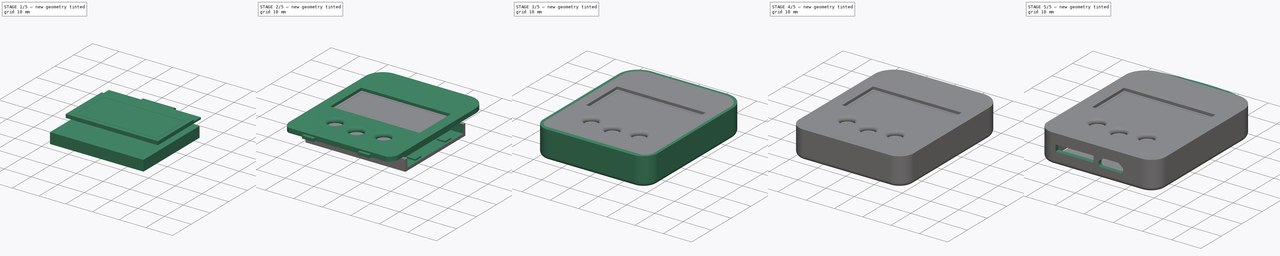
[diagram: build sequence overview — one tinted view per stage of 5, left to right]
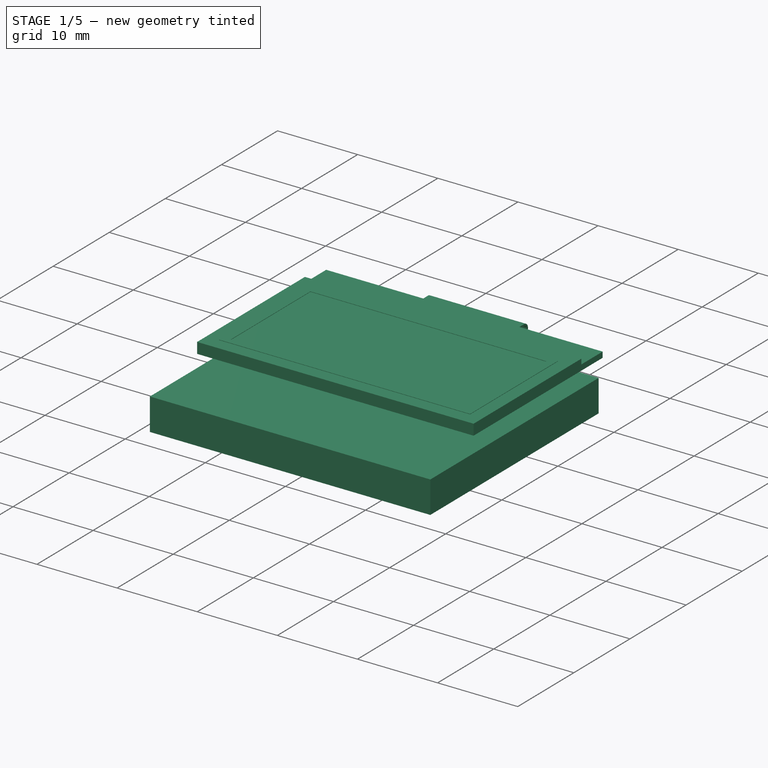
[diagram: stage 1 of 5 — iso view after this stage's code; geometry added in this stage tinted green]
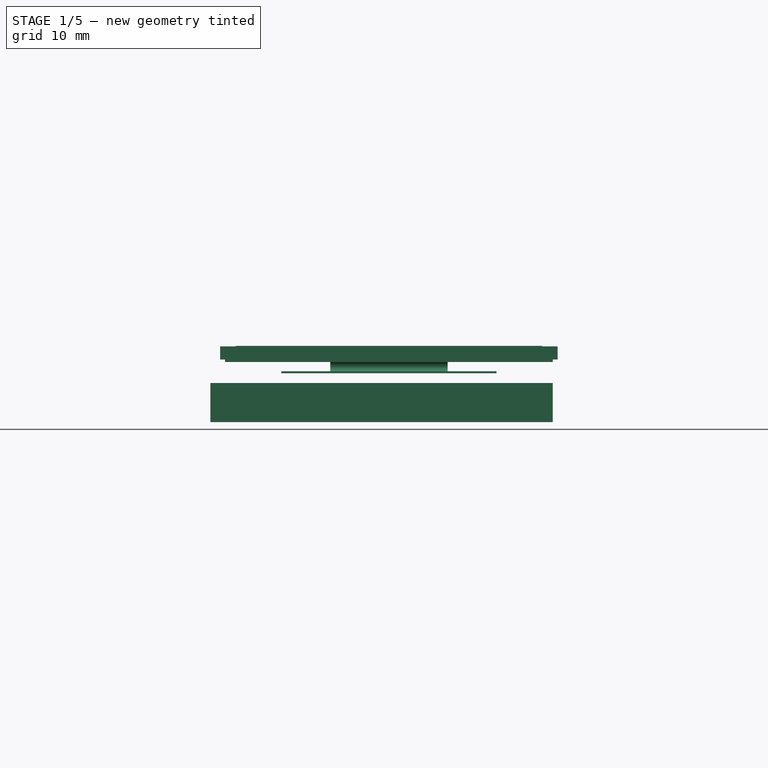
[diagram: stage 1 of 5 — front view after this stage's code; geometry added in this stage tinted green]
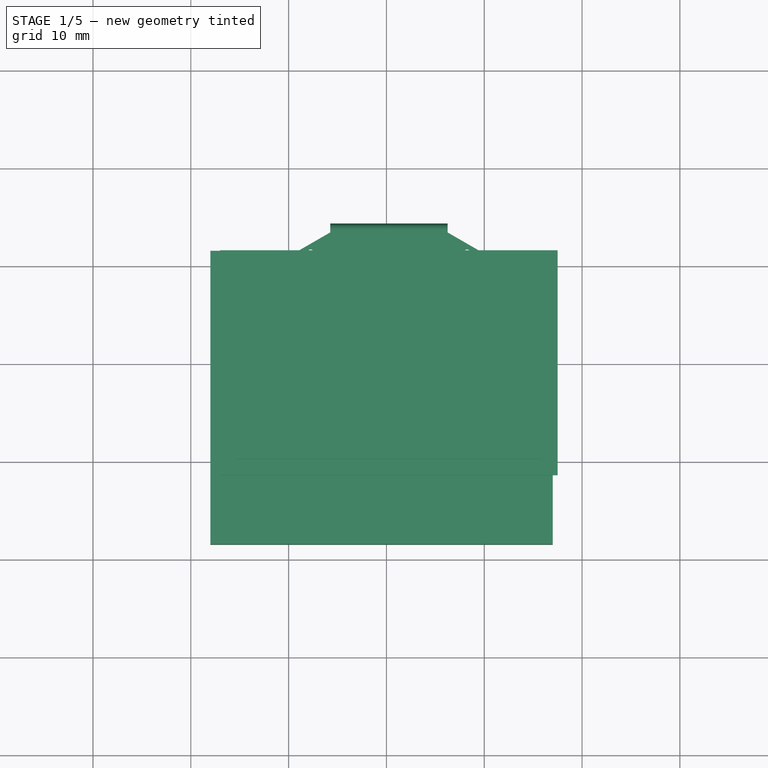
[diagram: stage 1 of 5 — top view after this stage's code; geometry added in this stage tinted green]
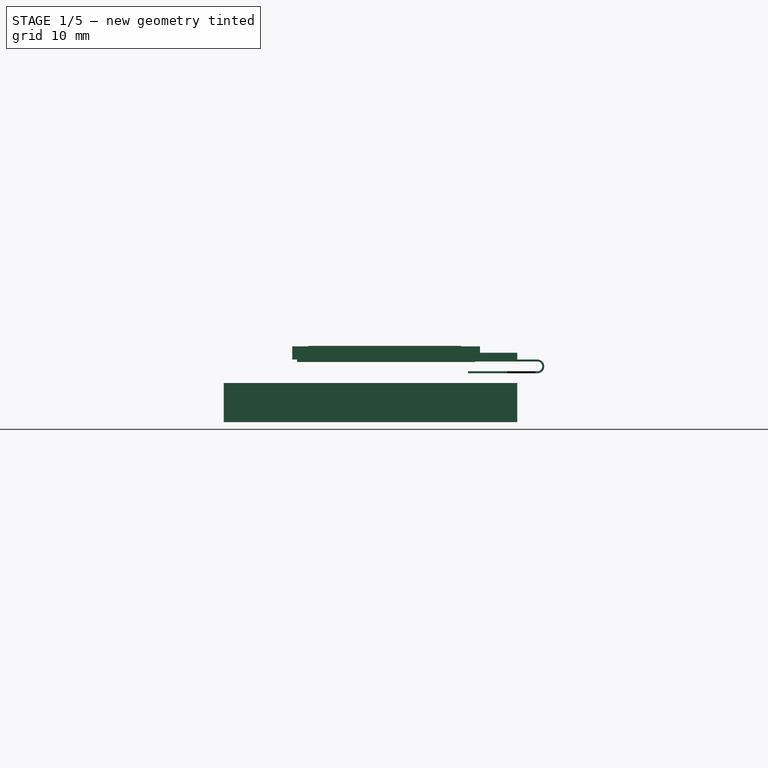
[diagram: stage 1 of 5 — right view after this stage's code; geometry added in this stage tinted green]
FCSTD DOCUMENT  (FreeCAD 0.18R16131 (Git))
Label: Xling-case
License: All rights reserved
LicenseURL: http://en.wikipedia.org/wiki/All_rights_reserved
objects: Part::Feature×60, Sketcher::SketchObject×41, PartDesign::Pad×26, PartDesign::Plane×16, PartDesign::Pocket×10, App::Part×5, PartDesign::Fillet×4, PartDesign::Body×4, PartDesign::ShapeBinder×3, PartDesign::Line×2, PartDesign::AdditiveLoft×1, PartDesign::CoordinateSystem×1, PartDesign::Revolution×1
note: 207 computed .brp shape members not serialized (recipe doc carries the construction recipe); baked Part::Feature solids carry a one-line shape summary decoded from their .brp

FEATURE [PartDesign::Body] Body001  label="Top-case"
  Group = -> [CopyPad014,Sketch024,Pad015,Sketch025,Pad016,Sketch026,Pocket006,Sketch027,Pocket007,Fillet002,Fillet003,Sketch028,Pocket008,Sketch029,Pad017]
  Origin = -> Origin001
  Tip = -> Pad017
FEATURE [PartDesign::CoordinateSystem] Local_CS
  AttacherType = Attacher::AttachEngine3D
FEATURE [Part::Feature] Pcb
  Placement = pos=(-148.5,98.5,0) rot=(0,0,1;0rad)
  shape: bbox 35 x 47 x 1 mm, 42 faces (baked)
FEATURE [Sketcher::SketchObject] PCB_Sketch
  sketch-geometry (26):
    g0: LineSegment StartX=-61.318 StartY=20.14 StartZ=0 EndX=-61.318 EndY=15.14 EndZ=0
    g1: LineSegment StartX=-61.318 StartY=20.14 StartZ=0 EndX=-62.318 EndY=20.14 EndZ=0
    g2: LineSegment StartX=-61.318 StartY=21.14 StartZ=0 EndX=-62.318 EndY=21.14 EndZ=0
    g3: LineSegment StartX=-71.318 StartY=55.64 StartZ=0 EndX=-78.818 EndY=55.64 EndZ=0
    g4: LineSegment StartX=-71.318 StartY=53.64 StartZ=0 EndX=-78.818 EndY=53.64 EndZ=0
    g5: LineSegment StartX=-86.318 StartY=55.64 StartZ=0 EndX=-78.818 EndY=55.64 EndZ=0
    g6: LineSegment StartX=-78.818 StartY=53.64 StartZ=0 EndX=-86.318 EndY=53.64 EndZ=0
    g7: LineSegment StartX=-61.318 StartY=52.89 StartZ=0 EndX=-63.3249 EndY=52.8978 EndZ=0
    g8: LineSegment StartX=-94.318 StartY=52.89 StartZ=0 EndX=-96.318 EndY=52.89 EndZ=0
    g9: LineSegment StartX=-71.198 StartY=59.14 StartZ=0 EndX=-68.318 EndY=59.14 EndZ=0
    g10: LineSegment StartX=-68.318 StartY=55.14 StartZ=0 EndX=-68.318 EndY=59.14 EndZ=0
    g11: LineSegment StartX=-89.3076 StartY=55.14 StartZ=0 EndX=-89.318 EndY=59.14 EndZ=0
    g12: LineSegment StartX=-89.318 StartY=59.14 StartZ=0 EndX=-86.438 EndY=59.14 EndZ=0
    g13: LineSegment StartX=-72.468 StartY=58.378 StartZ=0 EndX=-85.168 EndY=58.378 EndZ=0
    g14: LineSegment StartX=-71.198 StartY=59.14 StartZ=0 EndX=-72.468 EndY=58.378 EndZ=0
    g15: LineSegment StartX=-86.438 StartY=59.14 StartZ=0 EndX=-85.168 EndY=58.378 EndZ=0
    g16: LineSegment StartX=-61.318 StartY=52.89 StartZ=0 EndX=-61.318 EndY=21.14 EndZ=0
    g17: LineSegment StartX=-96.318 StartY=15.14 StartZ=0 EndX=-96.318 EndY=52.89 EndZ=0
    g18: LineSegment StartX=-64.318 StartY=12.14 StartZ=0 EndX=-93.318 EndY=12.14 EndZ=0
    g19: ArcOfCircle CenterX=-71.318 CenterY=54.64 CenterZ=0 NormalX=0 NormalY=0 NormalZ=1 AngleXU=0 Radius=1 StartAngle=4.71239 EndAngle=7.85398
    g20: ArcOfCircle CenterX=-86.318 CenterY=54.64 CenterZ=0 NormalX=0 NormalY=0 NormalZ=1 AngleXU=0 Radius=1 StartAngle=1.5708 EndAngle=4.71239
    g21: ArcOfCircle CenterX=-62.318 CenterY=20.64 CenterZ=0 NormalX=0 NormalY=0 NormalZ=1 AngleXU=0 Radius=0.5 StartAngle=1.5708 EndAngle=4.71239
    g22: ArcOfCircle CenterX=-65.318 CenterY=55.14 CenterZ=0 NormalX=0 NormalY=0 NormalZ=1 AngleXU=0 Radius=3 StartAngle=3.14159 EndAngle=5.43903
    g23: ArcOfCircle CenterX=-92.318 CenterY=55.14 CenterZ=0 NormalX=0 NormalY=0 NormalZ=1 AngleXU=0 Radius=3.0104 StartAngle=3.98575 EndAngle=6.28319
    g24: ArcOfCircle CenterX=-64.318 CenterY=15.14 CenterZ=0 NormalX=0 NormalY=0 NormalZ=1 AngleXU=0 Radius=3 StartAngle=4.71239 EndAngle=6.28319
    g25: ArcOfCircle CenterX=-93.318 CenterY=15.14 CenterZ=0 NormalX=0 NormalY=0 NormalZ=1 AngleXU=0 Radius=3 StartAngle=3.14159 EndAngle=4.71239
  constraints (26):
    c: Coincident(g17,g25)
    c: Coincident(g17,g8)
    c: Coincident(g8,g23)
    c: Coincident(g25,g18)
    c: Coincident(g11,g12)
    c: Coincident(g11,g23)
    c: Coincident(g12,g15)
    c: Coincident(g20,g6)
    c: Coincident(g20,g5)
    c: Coincident(g15,g13)
    c: Coincident(g6,g4)
    c: Coincident(g3,g5)
    c: Coincident(g14,g13)
    c: Coincident(g19,g4)
    c: Coincident(g19,g3)
    c: Coincident(g9,g14)
    c: Coincident(g22,g10)
    c: Coincident(g10,g9)
    c: Coincident(g18,g24)
    c: Coincident(g7,g22)
    c: Coincident(g1,g21)
    c: Coincident(g2,g21)
    c: Coincident(g0,g24)
    c: Coincident(g0,g1)
    c: Coincident(g16,g2)
    c: Coincident(g16,g7)
FEATURE [Part::Feature] Shape  label="U4_AP3401_5CA2DF32"
  Placement = pos=(-90.842,34.746,0.5) rot=(0,0.707107,0.707107;3.14159rad)
  shape: bbox 2.821 x 2.8 x 1 mm, 100 faces (baked)
FEATURE [Part::Feature] Shape001  label="U3_MCP73831_5D644795"
  Placement = pos=(-86.016,24.84,0.8) rot=(0.57735,0.57735,0.57735;2.0944rad)
  shape: bbox 3 x 2.9 x 1.25 mm, 84 faces (baked)
FEATURE [Part::Feature] Shape002  label="Y1_SFPX-104_5CBA4178"
  Placement = pos=(-66.358,41.808,0) rot=(0,0,1;3.14159rad)
  shape: bbox 5 x 3.2 x 1.1 mm, 56 faces (baked)
FEATURE [Part::Feature] Shape003  label="L1_L_1210_3225Metric_5D64342F"
  Placement = pos=(-91.223,18.49,0) rot=(0,0,1;3.14159rad)
  shape: bbox 3.2 x 2.5 x 2.5 mm, 28 faces (baked)
FEATURE [Part::Feature] Shape004  label="L2_L_1210_3225Metric_5D64346B"
  Placement = pos=(-91.223,14.68,0) rot=(0,0,1;0rad)
  shape: bbox 3.2 x 2.5 x 2.5 mm, 28 faces (baked)
FEATURE [Part::Feature] Shape005  label="D1_D_SOD_123_5CA42212"
  Placement = pos=(-89.953,25.094,0) rot=(0,0,-1;1.5708rad)
  shape: bbox 1.6 x 3.8 x 1.25 mm, 67 faces (baked)
FEATURE [Part::Feature] Shape006  label="C1_C_0603_1608Metric_5CA2DB1A"
  Placement = pos=(-82.841,38.302,0) rot=(0,0,1;3.92699rad)
  shape: bbox 1.697 x 1.697 x 0.8 mm, 28 faces (baked)
FEATURE [Part::Feature] Shape007  label="C2_C_0603_1608Metric_5CA49AE2"
  Placement = pos=(-66.204,49.224,0) rot=(0,0,-1;1.5708rad)
  shape: bbox 0.8 x 1.6 x 0.8 mm, 28 faces (baked)
FEATURE [Part::Feature] Shape008  label="C3_C_0603_1608Metric_5D733E3F"
  Placement = pos=(-80.428,26.4275,0) rot=(0,0,-1;0.785398rad)
  shape: bbox 1.697 x 1.697 x 0.8 mm, 28 faces (baked)
FEATURE [Part::Feature] Shape009  label="C5_C_0603_1608Metric_5CA2DB5E"
  Placement = pos=(-64.9975,38.683,0) rot=(0,0,1;3.14159rad)
  shape: bbox 1.6 x 0.8 x 0.8 mm, 28 faces (baked)
FEATURE [Part::Feature] Shape010  label="C6_C_0603_1608Metric_5D67B94C"
  Placement = pos=(-64.934,45.033,0) rot=(0,0,1;0rad)
  shape: bbox 1.6 x 0.8 x 0.8 mm, 28 faces (baked)
FEATURE [Part::Feature] Shape011  label="C7_C_0603_1608Metric_5D63B62D"
  Placement = pos=(-81.571,37.032,0) rot=(0,0,1;3.92699rad)
  shape: bbox 1.697 x 1.697 x 0.8 mm, 28 faces (baked)
FEATURE [Part::Feature] Shape012  label="C8_C_0603_1608Metric_5CA2DB91"
  Placement = pos=(-91.5405,49.1605,0) rot=(0,0,1;1.5708rad)
  shape: bbox 0.8 x 1.6 x 0.8 mm, 28 faces (baked)
FEATURE [Part::Feature] Shape013  label="C9_C_0603_1608Metric_5CA2DBA2"
  Placement = pos=(-93.89,49.1605,0) rot=(0,0,1;1.5708rad)
  shape: bbox 0.8 x 1.6 x 0.8 mm, 28 faces (baked)
FEATURE [Part::Feature] Shape014  label="C10_C_0603_1608Metric_5D643432"
  Placement = pos=(-68.5535,36.9685,0) rot=(0,0,-1;0.785398rad)
  shape: bbox 1.697 x 1.697 x 0.8 mm, 28 faces (baked)
FEATURE [Part::Feature] Shape015  label="C11_C_0603_1608Metric_5CA2DBC4"
  Placement = pos=(-64.299,49.224,0) rot=(0,0,-1;1.5708rad)
  shape: bbox 0.8 x 1.6 x 0.8 mm, 28 faces (baked)
FEATURE [Part::Feature] Shape016  label="C12_C_0603_1608Metric_5CA2DBD5"
  Placement = pos=(-65.442,21.792,0) rot=(0,0,1;1.5708rad)
  shape: bbox 0.8 x 1.6 x 0.8 mm, 28 faces (baked)
FEATURE [Part::Feature] Shape017  label="C13_C_0603_1608Metric_5CA44AE1"
  Placement = pos=(-66.204,34.619,0) rot=(0,0,-1;0.785398rad)
  shape: bbox 1.697 x 1.697 x 0.8 mm, 28 faces (baked)
FEATURE [Part::Feature] Shape018  label="C14_C_0603_1608Metric_5CA4C368"
  Placement = pos=(-63.41,30.174,0) rot=(0,0,1;1.5708rad)
  shape: bbox 0.8 x 1.6 x 0.8 mm, 28 faces (baked)
FEATURE [Part::Feature] Shape019  label="C15_C_0603_1608Metric_5CA2DC08"
  Placement = pos=(-78.396,20.1664,0) rot=(0,0,1;3.14159rad)
  shape: bbox 1.6 x 0.8 x 0.8 mm, 28 faces (baked)
FEATURE [Part::Feature] Shape020  label="C16_C_0603_1608Metric_5CA2DC19"
  Placement = pos=(-87.413,37.794,0) rot=(0,0,1;3.14159rad)
  shape: bbox 1.6 x 0.8 x 0.8 mm, 28 faces (baked)
FEATURE [Part::Feature] Shape021  label="C17_C_0603_1608Metric_5D63F4BD"
  Placement = pos=(-92.747,39.6355,0) rot=(0,0,1;0rad)
  shape: bbox 1.6 x 0.8 x 0.8 mm, 28 faces (baked)
FEATURE [Part::Feature] Shape022  label="C18_C_0603_1608Metric_5CA2DC3B"
  Placement = pos=(-90.588,21.284,0) rot=(0,0,1;3.14159rad)
  shape: bbox 1.6 x 0.8 x 0.8 mm, 28 faces (baked)
FEATURE [Part::Feature] Shape023  label="C19_C_0603_1608Metric_5CA4B68B"
  Placement = pos=(-90.842,29.539,0) rot=(0,0,1;3.14159rad)
  shape: bbox 1.6 x 0.8 x 0.8 mm, 28 faces (baked)
FEATURE [Part::Feature] Shape024  label="C20_C_0603_1608Metric_5D6448F2"
  Placement = pos=(-86.27,19.506,0) rot=(0,0,1;3.14159rad)
  shape: bbox 1.6 x 0.8 x 0.8 mm, 28 faces (baked)
FEATURE [Part::Feature] Shape025  label="C22_C_0603_1608Metric_5D71CC48"
  Placement = pos=(-84.238,35.889,0) rot=(0,0,-1;0.785398rad)
  shape: bbox 1.697 x 1.697 x 0.8 mm, 28 faces (baked)
FEATURE [Part::Feature] Shape026  label="R1_R_0603_1608Metric_5D64EB2D"
  Placement = pos=(-79.2215,44.0805,0) rot=(0,0,-1;1.5708rad)
  shape: bbox 0.8 x 1.6 x 0.45 mm, 26 faces (baked)
FEATURE [Part::Feature] Shape027  label="R2_R_0603_1608Metric_5D664B1E"
  Placement = pos=(-81.063,44.0805,0) rot=(0,0,-1;1.5708rad)
  shape: bbox 0.8 x 1.6 x 0.45 mm, 26 faces (baked)
FEATURE [Part::Feature] Shape028  label="R3_R_0603_1608Metric_5D6790C9"
  Placement = pos=(-69.379,25.856,0) rot=(0,0,1;3.92699rad)
  shape: bbox 1.697 x 1.697 x 0.45 mm, 26 faces (baked)
FEATURE [Part::Feature] Shape029  label="R4_R_0603_1608Metric_5D665198"
  Placement = pos=(-72.808,44.017,0) rot=(0,0,1;1.5708rad)
  shape: bbox 0.8 x 1.6 x 0.45 mm, 26 faces (baked)
FEATURE [Part::Feature] Shape030  label="R5_R_0603_1608Metric_5D67B27A"
  Placement = pos=(-65.823,26.872,0) rot=(0,0,1;3.92699rad)
  shape: bbox 1.697 x 1.697 x 0.45 mm, 26 faces (baked)
FEATURE [Part::Feature] Shape031  label="R6_R_0603_1608Metric_5D7348C7"
  Placement = pos=(-68.109,24.586,0) rot=(0,0,1;3.92699rad)
  shape: bbox 1.697 x 1.697 x 0.45 mm, 26 faces (baked)
FEATURE [Part::Feature] Shape032  label="R7_R_0603_1608Metric_5CA2DDAF"
  Placement = pos=(-79.9708,23.6716,0) rot=(0,0,1;3.14159rad)
  shape: bbox 1.6 x 0.8 x 0.45 mm, 26 faces (baked)
FEATURE [Part::Feature] Shape033  label="R8_R_0603_1608Metric_5CA2DDC4"
  Placement = pos=(-64.934,35.889,0) rot=(0,0,-1;0.785398rad)
  shape: bbox 1.697 x 1.697 x 0.45 mm, 26 faces (baked)
FEATURE [Part::Feature] Shape034  label="R9_R_0603_1608Metric_5D669B54"
  Placement = pos=(-64.553,25.602,0) rot=(0,0,1;3.92699rad)
  shape: bbox 1.697 x 1.697 x 0.45 mm, 26 faces (baked)
FEATURE [Part::Feature] Shape035  label="R10_R_0603_1608Metric_5CA2DDEE"
  Placement = pos=(-78.396,21.9444,0) rot=(0,0,1;3.14159rad)
  shape: bbox 1.6 x 0.8 x 0.45 mm, 26 faces (baked)
FEATURE [Part::Feature] Shape036  label="R11_R_0603_1608Metric_5D63F68F"
  Placement = pos=(-90.842,31.317,0) rot=(0,0,1;0rad)
  shape: bbox 1.6 x 0.8 x 0.45 mm, 26 faces (baked)
FEATURE [Part::Feature] Shape037  label="R12_R_0603_1608Metric_5D640082"
  Placement = pos=(-87.413,39.699,0) rot=(0,0,1;0rad)
  shape: bbox 1.6 x 0.8 x 0.45 mm, 26 faces (baked)
FEATURE [Part::Feature] Shape038  label="R13_R_0603_1608Metric_5CA2DE2D"
  Placement = pos=(-87.032,33.73,0) rot=(0,0,1;3.14159rad)
  shape: bbox 1.6 x 0.8 x 0.45 mm, 26 faces (baked)
FEATURE [Part::Feature] Shape039  label="R14_R_0603_1608Metric_5CA2F432"
  Placement = pos=(-85.508,29.666,0) rot=(0,0,1;3.14159rad)
  shape: bbox 1.6 x 0.8 x 0.45 mm, 26 faces (baked)
FEATURE [Part::Feature] Shape040  label="R15_R_0603_1608Metric_5D64492E"
  Placement = pos=(-86.27,21.284,0) rot=(0,0,1;0rad)
  shape: bbox 1.6 x 0.8 x 0.45 mm, 26 faces (baked)
FEATURE [Part::Feature] Shape041  label="R16_R_0603_1608Metric_5CA2DE6C"
  Placement = pos=(-83.3744,22.6556,0) rot=(0,0,-1;1.5708rad)
  shape: bbox 0.8 x 1.6 x 0.45 mm, 26 faces (baked)
FEATURE [Part::Feature] Shape042  label="R17_R_0603_1608Metric_5CA2DE81"
  Placement = pos=(-85.508,31.444,0) rot=(0,0,1;3.14159rad)
  shape: bbox 1.6 x 0.8 x 0.45 mm, 26 faces (baked)
FEATURE [Part::Feature] Shape043  label="R18_R_0603_1608Metric_5CA2DE96"
  Placement = pos=(-91.223,37.794,0) rot=(0,0,1;0rad)
  shape: bbox 1.6 x 0.8 x 0.45 mm, 26 faces (baked)
FEATURE [Part::Feature] Shape044  label="R19_R_0603_1608Metric_5D71CC5D"
  Placement = pos=(-76.383,44.0389,0) rot=(0,0,1;1.5708rad)
  shape: bbox 0.8 x 1.6 x 0.45 mm, 26 faces (baked)
FEATURE [Part::Feature] Shape045  label="R20_R_0603_1608Metric_5D71CC72"
  Placement = pos=(-74.605,44.0389,0) rot=(0,0,1;1.5708rad)
  shape: bbox 0.8 x 1.6 x 0.45 mm, 26 faces (baked)
FEATURE [Part::Feature] Shape046  label="U2_TQFP_44_10x10mm_P08mm_5D86F0D4"
  Placement = pos=(-75.094,32.46,0) rot=(0,0,1;2.35619rad)
  shape: bbox 14.39 x 14.39 x 1.1 mm, 704 faces (baked)
FEATURE [Part::Feature] Shape047  label="SW1_Switch TVCM09_5CA43E1D"
  Placement = pos=(-70.318,23.19,-1.1) rot=(0.57735,0.57735,-0.57735;4.18879rad)
  shape: bbox 4.7 x 4.5 x 0.55 mm, 77 faces (baked)
FEATURE [Part::Feature] Shape048  label="SW2_Switch TVCM09_5D66BBD4"
  Placement = pos=(-78.818,21.64,-1.1) rot=(0.57735,0.57735,-0.57735;4.18879rad)
  shape: bbox 4.7 x 4.5 x 0.55 mm, 77 faces (baked)
FEATURE [Part::Feature] Shape049  label="SW3_Switch TVCM09_5CA43DBA"
  Placement = pos=(-87.318,23.04,-1.1) rot=(0.57735,0.57735,-0.57735;4.18879rad)
  shape: bbox 4.7 x 4.5 x 0.55 mm, 77 faces (baked)
FEATURE [App::Part] Bot
  Group = -> [Shape047,Shape048,Shape049]
  Origin = -> Origin006
FEATURE [Part::Feature] Molex_504050_0691  label="Molex_504050-0691"
  Placement = pos=(-64.868,18.79,1.8) rot=(1,0,0;1.5708rad)
  shape: bbox 13.55 x 6.44 x 1.9 mm, 464 faces, 13 solids (baked)
FEATURE [Part::Feature] Shape050  label="J2_USB_Micro-B_Molex_47346-0001_5CA420ED[2]"
  Placement = pos=(-83.718,15.39,0) rot=(0,0,1;0rad)
  shape: bbox 7.977 x 5.418 x 2.937 mm, 484 faces (baked)
FEATURE [Part::Feature] Shape051  label="Q1_SOT_23_5CA2DD1C"
  Placement = pos=(-93.382,25.348,0) rot=(0,0,1;3.14159rad)
  shape: bbox 2.5 x 3 x 1.2 mm, 76 faces (baked)
FEATURE [Part::Feature] Shape052  label="C4_C_0603_1608Metric_5D67C30C"
  Placement = pos=(-67.093,28.142,0) rot=(0,0,1;0.785398rad)
  shape: bbox 1.697 x 1.697 x 0.8 mm, 28 faces (baked)
FEATURE [Part::Feature] Shape053  label="C21_C_0603_1608Metric_5D6FB9DC"
  Placement = pos=(-85.889,45.16,0) rot=(0,0,1;0rad)
  shape: bbox 1.6 x 0.8 x 0.8 mm, 28 faces (baked)
FEATURE [App::Part] Top
  Group = -> [Shape,Shape001,Shape002,Shape003,Shape004,Shape005,Shape006,Shape007,Shape008,Shape009,Shape010,Shape011,Shape012,Shape013,Shape014,Shape015,Shape016,Shape017,Shape018,Shape019,Shape020,Shape021,Shape022,Shape023,Shape024,Shape025,Shape026,Shape027,Shape028,Shape029,Shape030,Shape031,Shape032,Shape033,Shape034,Shape035,Shape036,Shape037,Shape038,Shape039,Shape040,Shape041,Shape042,Shape043,+8 more]
  Origin = -> Origin005
FEATURE [App::Part] Step_Models
  Group = -> [Top,Bot]
  Origin = -> Origin004
FEATURE [Part::Feature] topTracks
  Placement = pos=(-148.5,98.5,0.01) rot=(0,0,1;0rad)
  shape: bbox 33.79 x 45.79 x 0.04 mm, 365 faces, 0 solids (baked)
FEATURE [Part::Feature] botTracks
  Placement = pos=(-148.5,98.5,-1.01) rot=(0,0,1;0rad)
  shape: bbox 33.79 x 45.79 x 0.04 mm, 100 faces, 0 solids (baked)
FEATURE [Part::Feature] botSilks
  Placement = pos=(-148.5,98.5,-1.07) rot=(0,0,1;0rad)
  shape: bbox 31.19 x 33.32 x 2e-07 mm, 94 faces, 0 solids (baked)
FEATURE [Part::Feature] topSilks
  Placement = pos=(-148.5,98.5,0.07) rot=(0,0,1;0rad)
  shape: bbox 33.03 x 44.98 x 2e-07 mm, 297 faces, 0 solids (baked)
FEATURE [App::Part] Board_Geoms
  Group = -> [Local_CS,Pcb,PCB_Sketch,topTracks,botTracks,botSilks,topSilks]
  Origin = -> Origin002
FEATURE [App::Part] Board  label="xling"
  Group = -> [Board_Geoms,Step_Models]
  Origin = -> Origin003
  Placement = pos=(-58.55,-10.65,6.35) rot=(0,1,0;3.14159rad)
FEATURE [PartDesign::ShapeBinder] CopyPad017
  TraceSupport = false
FEATURE [Sketcher::SketchObject] Sketch030
  MapMode = 5
  Placement = pos=(0,0,8.95) rot=(1,0,0;3.14159rad)
  Support = -> [CopyPad017]
  sketch-geometry (4):
    g0: LineSegment StartX=37.5 StartY=-18.55 StartZ=0 EndX=3 EndY=-18.55 EndZ=0
    g1: LineSegment StartX=3 StartY=-18.55 StartZ=0 EndX=3 EndY=-37.75 EndZ=0
    g2: LineSegment StartX=3 StartY=-37.75 StartZ=0 EndX=37.5 EndY=-37.75 EndZ=0
    g3: LineSegment StartX=37.5 StartY=-37.75 StartZ=0 EndX=37.5 EndY=-18.55 EndZ=0
  constraints (12):
    c: Coincident(g0,g1)
    c: Coincident(g1,g2)
    c: Coincident(g2,g3)
    c: Coincident(g3,g0)
    c: Horizontal(g0)
    c: Horizontal(g2)
    c: Vertical(g1)
    c: Vertical(g3)
    c: DistanceX(g2,g2) = 34.5
    c: DistanceY(g1,g1) = 19.2
    c: Distance(g-1,g1) = 3
    c: Distance(g-1,g0) = 18.55
FEATURE [PartDesign::Pad] Pad018
  Length = 0.65
  Length2 = 100
  Profile = -> Sketch030
  Type = 0
FEATURE [Sketcher::SketchObject] Sketch031
  MapMode = 5
  Placement = pos=(0,0,8.95) rot=(0,0,1;0rad)
  Support = -> [Pad018]
  sketch-geometry (8):
    g0: LineSegment StartX=4.59 StartY=20.2 StartZ=0 EndX=35.91 EndY=20.2 EndZ=0
    g1: LineSegment StartX=35.91 StartY=20.2 StartZ=0 EndX=35.91 EndY=35.82 EndZ=0
    g2: LineSegment StartX=35.91 StartY=35.82 StartZ=0 EndX=4.59 EndY=35.82 EndZ=0
    g3: LineSegment StartX=4.59 StartY=35.82 StartZ=0 EndX=4.59 EndY=20.2 EndZ=0
    g4: LineSegment StartX=5.54 StartY=20.91 StartZ=0 EndX=34.96 EndY=20.91 EndZ=0
    g5: LineSegment StartX=34.96 StartY=20.91 StartZ=0 EndX=34.96 EndY=35.11 EndZ=0
    g6: LineSegment StartX=34.96 StartY=35.11 StartZ=0 EndX=5.54 EndY=35.11 EndZ=0
    g7: LineSegment StartX=5.54 StartY=35.11 StartZ=0 EndX=5.54 EndY=20.91 EndZ=0
  constraints (24):
    c: Coincident(g0,g1)
    c: Coincident(g1,g2)
    c: Coincident(g2,g3)
    c: Coincident(g3,g0)
    c: Horizontal(g0)
    c: Horizontal(g2)
    c: Vertical(g1)
    c: Vertical(g3)
    c: Coincident(g4,g5)
    c: Coincident(g5,g6)
    c: Coincident(g6,g7)
    c: Coincident(g7,g4)
    c: Horizontal(g4)
    c: Horizontal(g6)
    c: Vertical(g5)
    c: Vertical(g7)
    c: DistanceX(g6,g6) = 29.42
    c: DistanceX(g2,g2) = 31.32
    c: DistanceY(g6,g2) = 0.71
    c: DistanceY(g7,g7) = 14.2
    c: DistanceY(g3,g3) = 15.62
    c: DistanceX(g0,g4) = 0.95
    c: Distance(g-1,g3) = 4.59
    c: Distance(g-1,g0) = 20.2
FEATURE [PartDesign::Pad] Pad019
  BaseFeature = -> Pad018
  Length = 0.05
  Length2 = 100
  Profile = -> Sketch031
  Type = 0
FEATURE [Sketcher::SketchObject] Sketch032
  ExternalGeometry = -> [Pad019]
  MapMode = 5
  Placement = pos=(0,0,8.3) rot=(1,0,0;3.14159rad)
  Support = -> [Pad019]
  sketch-geometry (4):
    g0: LineSegment StartX=37.5 StartY=-18.55 StartZ=0 EndX=3 EndY=-18.55 EndZ=0
    g1: LineSegment StartX=3 StartY=-18.55 StartZ=0 EndX=3 EndY=-41.55 EndZ=0
    g2: LineSegment StartX=3 StartY=-41.55 StartZ=0 EndX=37.5 EndY=-41.55 EndZ=0
    g3: LineSegment StartX=37.5 StartY=-41.55 StartZ=0 EndX=37.5 EndY=-18.55 EndZ=0
  constraints (11):
    c: Coincident(g0,g1)
    c: Coincident(g1,g2)
    c: Coincident(g2,g3)
    c: Coincident(g3,g0)
    c: Horizontal(g0)
    c: Horizontal(g2)
    c: Vertical(g1)
    c: Vertical(g3)
    c: Coincident(g0,g-5)
    c: DistanceX(g2,g2) = 34.5
    c: DistanceY(g3,g3) = 23
FEATURE [PartDesign::Pad] Pad020
  BaseFeature = -> Pad019
  Length = 0.7
  Length2 = 100
  Profile = -> Sketch032
  Type = 0
FEATURE [Sketcher::SketchObject] Sketch033
  ExternalGeometry = -> [Pad020]
  MapMode = 5
  Placement = pos=(0,0,7.6) rot=(1,0,0;3.14159rad)
  Support = -> [Pad020]
  sketch-geometry (4):
    g0: LineSegment StartX=37 StartY=-19.05 StartZ=0 EndX=3.5 EndY=-19.05 EndZ=0
    g1: LineSegment StartX=3.5 StartY=-19.05 StartZ=0 EndX=3.5 EndY=-37.25 EndZ=0
    g2: LineSegment StartX=3.5 StartY=-37.25 StartZ=0 EndX=37 EndY=-37.25 EndZ=0
    g3: LineSegment StartX=37 StartY=-37.25 StartZ=0 EndX=37 EndY=-19.05 EndZ=0
  constraints (12):
    c: Coincident(g0,g1)
    c: Coincident(g1,g2)
    c: Coincident(g2,g3)
    c: Coincident(g3,g0)
    c: Horizontal(g0)
    c: Horizontal(g2)
    c: Vertical(g1)
    c: Vertical(g3)
    c: DistanceX(g2,g2) = 33.5
    c: DistanceY(g1,g1) = 18.2
    c: Distance(g-4,g0) = 0.5
    c: Distance(g-4,g3) = 0.5
FEATURE [PartDesign::Pad] Pad021
  BaseFeature = -> Pad020
  Length = 0.25
  Length2 = 100
  Profile = -> Sketch033
  Type = 0
FEATURE [PartDesign::ShapeBinder] CopyPad014001
  TraceSupport = false
FEATURE [Sketcher::SketchObject] Sketch034
  MapMode = 5
  Placement = pos=(0,0,1.2) rot=(0,0,1;0rad)
  Support = -> [CopyPad014001]
  sketch-geometry (4):
    g0: LineSegment StartX=2 StartY=11.55 StartZ=0 EndX=37 EndY=11.55 EndZ=0
    g1: LineSegment StartX=37 StartY=11.55 StartZ=0 EndX=37 EndY=41.55 EndZ=0
    g2: LineSegment StartX=37 StartY=41.55 StartZ=0 EndX=2 EndY=41.55 EndZ=0
    g3: LineSegment StartX=2 StartY=41.55 StartZ=0 EndX=2 EndY=11.55 EndZ=0
  constraints (12):
    c: Coincident(g0,g1)
    c: Coincident(g1,g2)
    c: Coincident(g2,g3)
    c: Coincident(g3,g0)
    c: Horizontal(g0)
    c: Horizontal(g2)
    c: Vertical(g1)
    c: Vertical(g3)
    c: DistanceY(g3,g3) = 30
    c: DistanceX(g2,g2) = 35
    c: Distance(g-1,g0) = 11.55
    c: Distance(g-1,g3) = 2
FEATURE [PartDesign::Pad] Pad022
  Length = 4
  Length2 = 100
  Profile = -> Sketch034
  Type = 0
FEATURE [PartDesign::Body] Body004  label="LP403035"
  Group = -> [CopyPad014001,Sketch034,Pad022,Sketch035,Pocket009,Sketch036,Pad023]
  Origin = -> Origin009
  Tip = -> Pad023
FEATURE [Sketcher::SketchObject] Sketch037
  ExternalGeometry = -> [Pad021]
  MapMode = 5
  Placement = pos=(0,0,7.6) rot=(1,0,0;3.14159rad)
  Support = -> [Pad021]
  sketch-geometry (8):
    g0: LineSegment StartX=12.65 StartY=-37.25 StartZ=0 EndX=27.85 EndY=-37.25 EndZ=0
    g1: LineSegment StartX=27.85 StartY=-37.25 StartZ=0 EndX=27.85 EndY=-41.05 EndZ=0
    g2: LineSegment StartX=12.65 StartY=-41.05 StartZ=0 EndX=12.65 EndY=-37.25 EndZ=0
    g3: LineSegment StartX=12.65 StartY=-41.05 StartZ=0 EndX=14.25 EndY=-41.05 EndZ=0
    g4: LineSegment StartX=27.85 StartY=-41.05 StartZ=0 EndX=26.25 EndY=-41.05 EndZ=0
    g5: LineSegment StartX=14.25 StartY=-41.05 StartZ=0 EndX=14.25 EndY=-43.61 EndZ=0
    g6: LineSegment StartX=26.25 StartY=-41.05 StartZ=0 EndX=26.25 EndY=-43.61 EndZ=0
    g7: LineSegment StartX=14.25 StartY=-43.61 StartZ=0 EndX=26.25 EndY=-43.61 EndZ=0
  constraints (24):
    c: Coincident(g0,g1)
    c: Coincident(g2,g0)
    c: Horizontal(g0)
    c: Vertical(g1)
    c: Vertical(g2)
    c: DistanceY(g2,g2) = 3.8
    c: DistanceY(g1,g1) = 3.8
    c: DistanceX(g0,g0) = 15.2
    c: PointOnObject(g0,g-3)
    c: Coincident(g3,g2)
    c: Horizontal(g3)
    c: Coincident(g4,g1)
    c: Horizontal(g4)
    c: DistanceX(g3,g3) = 1.6
    c: DistanceX(g4,g4) = 1.6
    c: Coincident(g5,g3)
    c: Vertical(g5)
    c: Coincident(g6,g4)
    c: Vertical(g6)
    c: DistanceY(g5,g5) = 2.56
    c: DistanceY(g6,g6) = 2.56
    c: Coincident(g7,g5)
    c: Coincident(g7,g6)
    c: Distance(g-3,g2) = 9.15
FEATURE [PartDesign::Pad] Pad024
  BaseFeature = -> Pad021
  Length = 0.2
  Length2 = 100
  Profile = -> Sketch037
  Type = 0
FEATURE [Sketcher::SketchObject] Sketch038
  ExternalGeometry = -> [Pad024]
  MapMode = 5
  Placement = pos=(0,43.61,0) rot=(0,0.707107,0.707107;3.14159rad)
  Support = -> [Pad024]
  sketch-geometry (5):
    g0: LineSegment StartX=-26.25 StartY=7.4 StartZ=0 EndX=-14.25 EndY=7.4 EndZ=0
    g1: LineSegment StartX=-14.25 StartY=7.4 StartZ=0 EndX=-14.25 EndY=7.6 EndZ=0
    g2: LineSegment StartX=-14.25 StartY=7.6 StartZ=0 EndX=-26.25 EndY=7.6 EndZ=0
    g3: LineSegment StartX=-26.25 StartY=7.6 StartZ=0 EndX=-26.25 EndY=7.4 EndZ=0
    g4: LineSegment [constr] StartX=-26.2622 StartY=6.9 StartZ=0 EndX=-24.432 EndY=6.9 EndZ=0
  constraints (12):
    c: Coincident(g0,g1)
    c: Coincident(g1,g2)
    c: Coincident(g2,g3)
    c: Coincident(g3,g0)
    c: Horizontal(g0)
    c: Horizontal(g2)
    c: Vertical(g1)
    c: Vertical(g3)
    c: Coincident(g0,g-3)
    c: Coincident(g1,g-4)
    c: Horizontal(g4)
    c: Distance(g0,g4) = 0.5
FEATURE [PartDesign::Revolution] Revolution
  Angle = 180
  Axis = (-1.83021,0,0)
  Base = (26.2622,43.61,6.9)
  BaseFeature = -> Pad024
  Profile = -> Sketch038
  ReferenceAxis = -> Sketch038 [Axis0]
FEATURE [Sketcher::SketchObject] Sketch039
  AttachmentOffset = pos=(0,0,-1.4) rot=(0,0,1;0rad)
  ExternalGeometry = -> [Revolution]
  MapMode = 5
  Placement = pos=(0,0,6.2) rot=(0,0,1;0rad)
  Support = -> [Revolution]
  sketch-geometry (10):
    g0: LineSegment StartX=14.25 StartY=43.61 StartZ=0 EndX=14.25 EndY=43.4068 EndZ=0
    g1: LineSegment StartX=26.25 StartY=43.61 StartZ=0 EndX=26.25 EndY=43.4068 EndZ=0
    g2: LineSegment StartX=14.25 StartY=43.61 StartZ=0 EndX=26.25 EndY=43.61 EndZ=0
    g3: LineSegment StartX=9.25 StartY=36.52 StartZ=0 EndX=31.25 EndY=36.52 EndZ=0
    g4: LineSegment StartX=9.25 StartY=36.52 StartZ=0 EndX=9.25 EndY=40.52 EndZ=0
    g5: LineSegment StartX=31.25 StartY=36.52 StartZ=0 EndX=31.25 EndY=40.52 EndZ=0
    g6: LineSegment StartX=9.25 StartY=40.52 StartZ=0 EndX=14.25 EndY=43.4068 EndZ=0
    g7: LineSegment StartX=31.25 StartY=40.52 StartZ=0 EndX=26.25 EndY=43.4068 EndZ=0
    g8: Circle CenterX=12.25 CenterY=41.27 CenterZ=0 NormalX=0 NormalY=0 NormalZ=1 AngleXU=0 Radius=0.4
    g9: Circle CenterX=28.25 CenterY=41.27 CenterZ=0 NormalX=0 NormalY=0 NormalZ=1 AngleXU=0 Radius=0.4
  constraints (28):
    c: Coincident(g0,g-3)
    c: Vertical(g0)
    c: Coincident(g1,g-3)
    c: Vertical(g1)
    c: Coincident(g2,g0)
    c: Coincident(g2,g1)
    c: Horizontal(g3)
    c: Coincident(g4,g3)
    c: Vertical(g4)
    c: Coincident(g5,g3)
    c: Vertical(g5)
    c: DistanceX(g3,g3) = 22
    c: DistanceY(g5,g5) = 4
    c: DistanceY(g4,g4) = 4
    c: Distance(g0,g3) = 7.09
    c: Distance(g0,g4) = 5
    c: Coincident(g6,g4)
    c: Coincident(g6,g0)
    c: Coincident(g7,g5)
    c: Coincident(g7,g1)
    c: Angle(g4,g6) = 2.0944
    c: Angle(g7,g5) = 2.0944
    c: Diameter(g9) = 0.8
    c: Diameter(g8) = 0.8
    c: Distance(g8,g4) = 3
    c: Distance(g8,g3) = 4.75
    c: Distance(g9,g5) = 3
    c: Distance(g9,g3) = 4.75
FEATURE [PartDesign::Pad] Pad025
  BaseFeature = -> Revolution
  Length = 0.2
  Length2 = 100
  Profile = -> Sketch039
  Type = 0
FEATURE [PartDesign::Body] Body002  label="Display REX 012864"
  Group = -> [CopyPad017,Sketch030,Pad018,Sketch031,Pad019,Sketch032,Pad020,Sketch033,Pad021,Sketch037,Pad024,Sketch038,Revolution,Sketch039,Pad025]
  Origin = -> Origin007
  Tip = -> Pad025
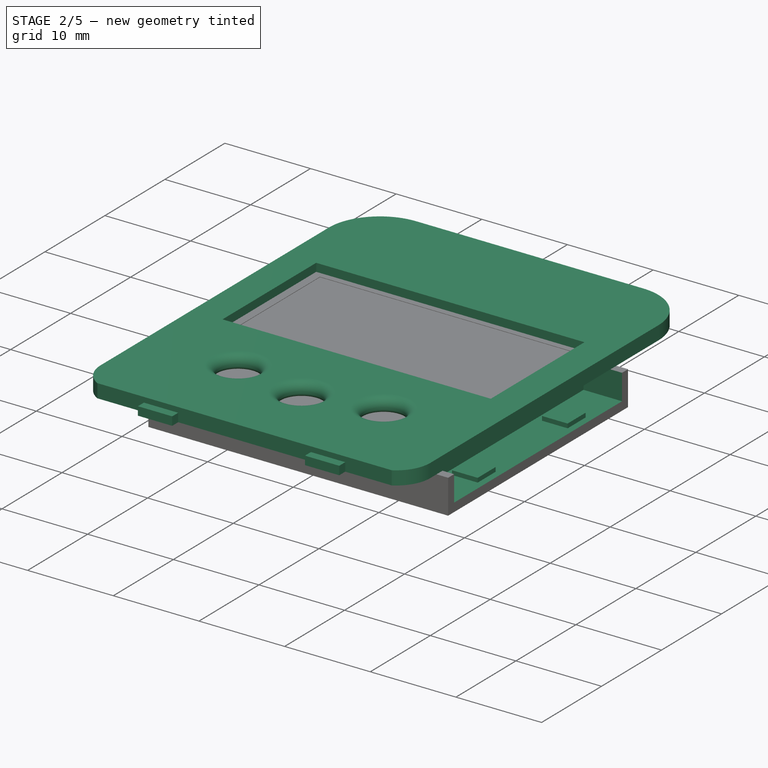
[diagram: stage 2 of 5 — iso view after this stage's code; geometry added in this stage tinted green]
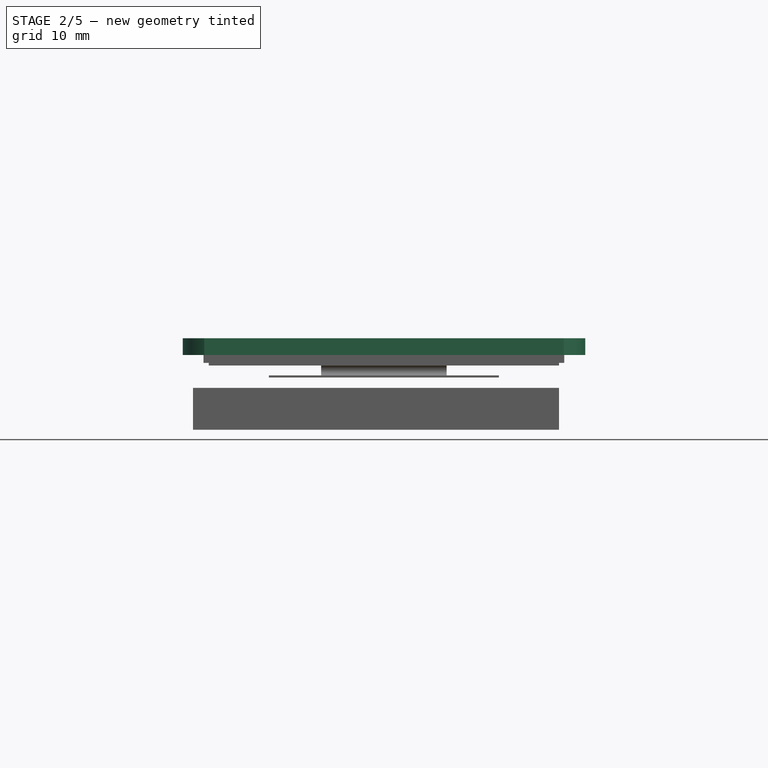
[diagram: stage 2 of 5 — front view after this stage's code; geometry added in this stage tinted green]
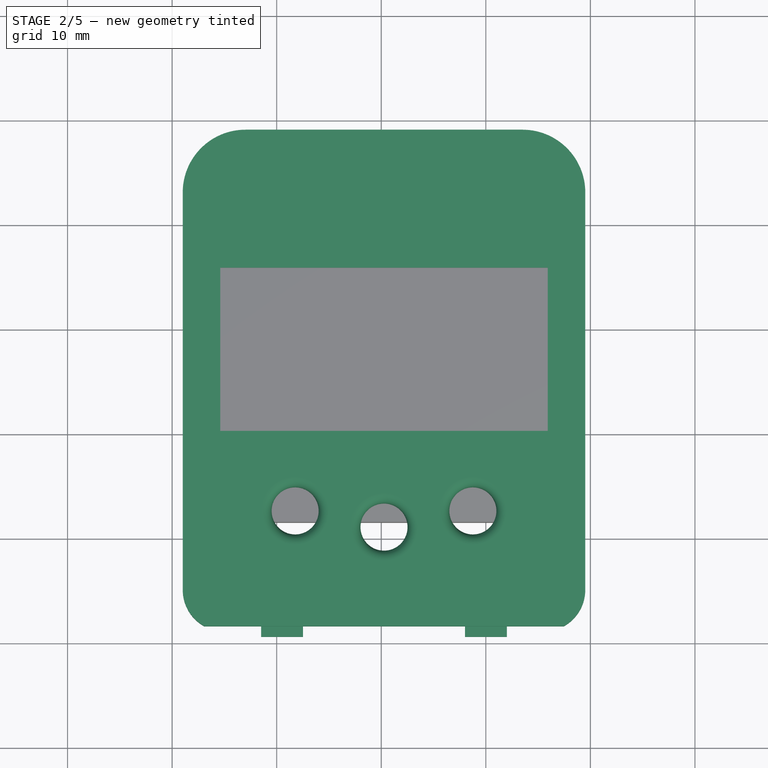
[diagram: stage 2 of 5 — top view after this stage's code; geometry added in this stage tinted green]
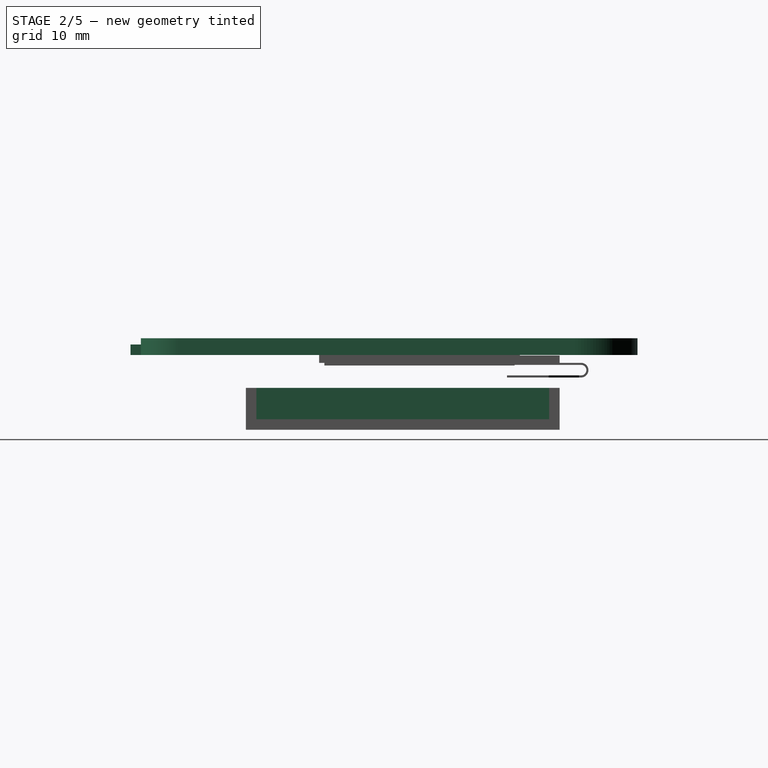
[diagram: stage 2 of 5 — right view after this stage's code; geometry added in this stage tinted green]
FEATURE [PartDesign::Body] Body  label="Bottom-case"
  Group = -> [Sketch,Pad,Fillet,DatumPlane,Sketch001,Pocket,DatumPlane001,Sketch002,Pocket001,DatumPlane002,Sketch003,Pad001,DatumPlane003,Sketch004,Pocket002,DatumPlane004,Sketch005,Pad002,DatumPlane005,Sketch006,Pad003,DatumPlane006,Sketch007,Pad004,DatumPlane007,Sketch008,Pad005,DatumPlane008,Sketch009,Pad006,DatumPlane009,Sketch010,Pad007,DatumPlane010,Sketch011,Pad008,Sketch012,Pocket003,Sketch013,Pad009,+26 more]
  Origin = -> Origin
  Tip = -> Pad014
FEATURE [PartDesign::ShapeBinder] CopyPad014
  TraceSupport = false
FEATURE [Sketcher::SketchObject] Sketch024
  MapMode = 5
  Placement = pos=(0,0,8.35) rot=(0,0,1;0rad)
  Support = -> [CopyPad014]
  sketch-geometry (8):
    g0: LineSegment StartX=1.0143 StartY=5.00782 StartZ=0 EndX=1.0143 EndY=43.0078 EndZ=0
    g1: LineSegment StartX=3.0778 StartY=1.50782 StartZ=0 EndX=37.4508 EndY=1.50782 EndZ=0
    g2: LineSegment StartX=39.5143 StartY=5.00782 StartZ=0 EndX=39.5143 EndY=43.0078 EndZ=0
    g3: LineSegment StartX=33.5143 StartY=49.0078 StartZ=0 EndX=7.01427 EndY=49.0078 EndZ=0
    g4: ArcOfCircle CenterX=7.0143 CenterY=43.0078 CenterZ=0 NormalX=0 NormalY=0 NormalZ=1 AngleXU=0 Radius=6 StartAngle=1.5708 EndAngle=3.14159
    g5: ArcOfCircle CenterX=33.5143 CenterY=43.0078 CenterZ=0 NormalX=0 NormalY=0 NormalZ=1 AngleXU=0 Radius=6 StartAngle=-1.8e-15 EndAngle=1.5708
    g6: ArcOfCircle CenterX=5.0143 CenterY=5.00782 CenterZ=0 NormalX=0 NormalY=0 NormalZ=1 AngleXU=0 Radius=4 StartAngle=3.14159 EndAngle=4.20703
    g7: ArcOfCircle CenterX=35.5143 CenterY=5.00782 CenterZ=0 NormalX=0 NormalY=0 NormalZ=1 AngleXU=0 Radius=4 StartAngle=5.21775 EndAngle=6.28319
  constraints (30):
    c: Vertical(g0)
    c: Horizontal(g1)
    c: Vertical(g2)
    c: Horizontal(g3)
    c: DistanceX(g1,g1) = 34.373
    c: DistanceY(g0,g0) = 38
    c: DistanceY(g2,g2) = 38
    c: DistanceX(g3,g3) = 26.5
    c: DistanceY(g1,g3) = 47.5
    c: DistanceX(g0,g2) = 38.5
    c: Coincident(g4,g0)
    c: Coincident(g4,g3)
    c: Radius(g4) = 6
    c: Coincident(g5,g2)
    c: Coincident(g5,g3)
    c: Radius(g5) = 6
    c: Coincident(g6,g0)
    c: Coincident(g6,g1)
    c: Radius(g6) = 4
    c: Coincident(g7,g2)
    c: Coincident(g7,g1)
    c: Radius(g7) = 4
    c: DistanceY(g1,g0) = 3.5
    c: DistanceY(g1,g2) = 3.5
    c: DistanceX(g0,g1) = 2.0635
    c: Tangent(g3,g4)
    c: Tangent(g0,g4)
    c: Tangent(g5,g3)
    c: Tangent(g2,g5)
    c: Tangent(g0,g6)
FEATURE [PartDesign::Pad] Pad015
  Length = 1.6
  Length2 = 100
  Profile = -> Sketch024
  Type = 0
FEATURE [Sketcher::SketchObject] Sketch025
  ExternalGeometry = -> [Pad015]
  MapMode = 5
  Placement = pos=(0,1.50782,0) rot=(1,0,0;1.5708rad)
  Support = -> [Pad015]
  sketch-geometry (8):
    g0: LineSegment StartX=8.5138 StartY=8.35 StartZ=0 EndX=12.5138 EndY=8.35 EndZ=0
    g1: LineSegment StartX=12.5138 StartY=8.35 StartZ=0 EndX=12.5138 EndY=9.35 EndZ=0
    g2: LineSegment StartX=12.5138 StartY=9.35 StartZ=0 EndX=8.5138 EndY=9.35 EndZ=0
    g3: LineSegment StartX=8.5138 StartY=9.35 StartZ=0 EndX=8.5138 EndY=8.35 EndZ=0
    g4: LineSegment StartX=28.0148 StartY=8.35 StartZ=0 EndX=32.0148 EndY=8.35 EndZ=0
    g5: LineSegment StartX=32.0148 StartY=8.35 StartZ=0 EndX=32.0148 EndY=9.35 EndZ=0
    g6: LineSegment StartX=32.0148 StartY=9.35 StartZ=0 EndX=28.0148 EndY=9.35 EndZ=0
    g7: LineSegment StartX=28.0148 StartY=9.35 StartZ=0 EndX=28.0148 EndY=8.35 EndZ=0
  constraints (24):
    c: Coincident(g0,g1)
    c: Coincident(g1,g2)
    c: Coincident(g2,g3)
    c: Coincident(g3,g0)
    c: Horizontal(g0)
    c: Horizontal(g2)
    c: Vertical(g1)
    c: Vertical(g3)
    c: PointOnObject(g0,g-3)
    c: Coincident(g4,g5)
    c: Coincident(g5,g6)
    c: Coincident(g6,g7)
    c: Coincident(g7,g4)
    c: Horizontal(g4)
    c: Horizontal(g6)
    c: Vertical(g5)
    c: Vertical(g7)
    c: DistanceX(g2,g2) = 4
    c: DistanceX(g6,g6) = 4
    c: DistanceY(g5,g5) = 1
    c: DistanceY(g1,g1) = 1
    c: PointOnObject(g-5,g4)
    c: Distance(g-4,g3) = 5.436
    c: Distance(g-5,g5) = 5.436
FEATURE [PartDesign::Pad] Pad016
  BaseFeature = -> Pad015
  Length = 1
  Length2 = 100
  Profile = -> Sketch025
  Type = 0
FEATURE [Sketcher::SketchObject] Sketch026
  ExternalGeometry = -> [Pad016]
  MapMode = 5
  Placement = pos=(0,0,9.95) rot=(0,0,1;0rad)
  Support = -> [Pad016]
  sketch-geometry (4):
    g0: LineSegment StartX=4.6043 StartY=35.8178 StartZ=0 EndX=35.9243 EndY=35.8178 EndZ=0
    g1: LineSegment StartX=35.9243 StartY=35.8178 StartZ=0 EndX=35.9243 EndY=20.1978 EndZ=0
    g2: LineSegment StartX=35.9243 StartY=20.1978 StartZ=0 EndX=4.6043 EndY=20.1978 EndZ=0
    g3: LineSegment StartX=4.6043 StartY=20.1978 StartZ=0 EndX=4.6043 EndY=35.8178 EndZ=0
  constraints (12):
    c: Coincident(g0,g1)
    c: Coincident(g1,g2)
    c: Coincident(g2,g3)
    c: Coincident(g3,g0)
    c: Horizontal(g0)
    c: Horizontal(g2)
    c: Vertical(g1)
    c: Vertical(g3)
    c: DistanceX(g0,g0) = 31.32
    c: DistanceY(g1,g1) = 15.62
    c: Distance(g-3,g1) = 3.59
    c: Distance(g-4,g0) = 13.19
FEATURE [PartDesign::Pocket] Pocket006
  BaseFeature = -> Pad016
  Length = 1.6
  Length2 = 100
  Profile = -> Sketch026
  Type = 0
FEATURE [Sketcher::SketchObject] Sketch027
  ExternalGeometry = -> [Pocket006]
  MapMode = 5
  Placement = pos=(0,0,9.95) rot=(0,0,1;0rad)
  Support = -> [Pocket006]
  sketch-geometry (3):
    g0: Circle CenterX=11.7643 CenterY=12.5578 CenterZ=0 NormalX=0 NormalY=0 NormalZ=1 AngleXU=0 Radius=2.25
    g1: Circle CenterX=20.2643 CenterY=11.0078 CenterZ=0 NormalX=0 NormalY=0 NormalZ=1 AngleXU=0 Radius=2.25
    g2: Circle CenterX=28.7643 CenterY=12.5578 CenterZ=0 NormalX=0 NormalY=0 NormalZ=1 AngleXU=0 Radius=2.25
  constraints (9):
    c: Diameter(g0) = 4.5
    c: Diameter(g1) = 4.5
    c: Diameter(g2) = 4.5
    c: DistanceY(g-3,g0) = 11.05
    c: DistanceY(g-3,g2) = 11.05
    c: DistanceY(g-3,g1) = 9.5
    c: DistanceX(g-4,g0) = 10.75
    c: DistanceX(g2,g-5) = 10.75
    c: DistanceX(g0,g1) = 8.5
FEATURE [PartDesign::Pocket] Pocket007
  BaseFeature = -> Pocket006
  Length = 1.6
  Length2 = 100
  Profile = -> Sketch027
  Type = 0
FEATURE [PartDesign::Fillet] Fillet002
  Base = -> Pocket007 [Edge36,Edge37,Edge38]
  BaseFeature = -> Pocket007
  Radius = 1
FEATURE [PartDesign::Fillet] Fillet003
  Base = -> Fillet002 [Edge55,Edge58,Edge59]
  BaseFeature = -> Fillet002
  Radius = 0.5
FEATURE [Sketcher::SketchObject] Sketch028
  ExternalGeometry = -> [Fillet003]
  MapMode = 5
  Placement = pos=(0,0,8.35) rot=(1,0,0;3.14159rad)
  Support = -> [Fillet003]
  sketch-geometry (4):
    g0: LineSegment StartX=3.0143 StartY=-18.5578 StartZ=0 EndX=37.5143 EndY=-18.5578 EndZ=0
    g1: LineSegment StartX=37.5143 StartY=-18.5578 StartZ=0 EndX=37.5143 EndY=-41.5578 EndZ=0
    g2: LineSegment StartX=37.5143 StartY=-41.5578 StartZ=0 EndX=3.0143 EndY=-41.5578 EndZ=0
    g3: LineSegment StartX=3.0143 StartY=-41.5578 StartZ=0 EndX=3.0143 EndY=-18.5578 EndZ=0
  constraints (12):
    c: Coincident(g0,g1)
    c: Coincident(g1,g2)
    c: Coincident(g2,g3)
    c: Coincident(g3,g0)
    c: Horizontal(g0)
    c: Horizontal(g2)
    c: Vertical(g1)
    c: Vertical(g3)
    c: DistanceX(g0,g0) = 34.5
    c: DistanceY(g1,g1) = 23
    c: DistanceY(g-5,g2) = 7.45
    c: Distance(g2,g-3) = 2
FEATURE [PartDesign::Pocket] Pocket008
  BaseFeature = -> Fillet003
  Length = 0.6
  Length2 = 100
  Profile = -> Sketch028
  Type = 0
FEATURE [Sketcher::SketchObject] Sketch035
  ExternalGeometry = -> [Pad022]
  MapMode = 5
  Placement = pos=(0,0,5.2) rot=(0,0,1;0rad)
  Support = -> [Pad022]
  sketch-geometry (4):
    g0: LineSegment StartX=32.5 StartY=40.55 StartZ=0 EndX=37 EndY=40.55 EndZ=0
    g1: LineSegment StartX=37 StartY=40.55 StartZ=0 EndX=37 EndY=12.55 EndZ=0
    g2: LineSegment StartX=37 StartY=12.55 StartZ=0 EndX=32.5 EndY=12.55 EndZ=0
    g3: LineSegment StartX=32.5 StartY=12.55 StartZ=0 EndX=32.5 EndY=40.55 EndZ=0
  constraints (12):
    c: Coincident(g0,g1)
    c: Coincident(g1,g2)
    c: Coincident(g2,g3)
    c: Coincident(g3,g0)
    c: Horizontal(g0)
    c: Horizontal(g2)
    c: Vertical(g1)
    c: Vertical(g3)
    c: DistanceY(g3,g3) = 28
    c: DistanceX(g0,g0) = 4.5
    c: Distance(g-5,g2) = 1
    c: PointOnObject(g-5,g1)
FEATURE [PartDesign::Pocket] Pocket009
  BaseFeature = -> Pad022
  Length = 3
  Length2 = 100
  Profile = -> Sketch035
  Type = 0
FEATURE [Sketcher::SketchObject] Sketch036
  ExternalGeometry = -> [Pocket009]
  MapMode = 5
  Placement = pos=(0,0,2.2) rot=(0,0,1;0rad)
  Support = -> [Pocket009]
  sketch-geometry (8):
    g0: LineSegment StartX=33.25 StartY=35.55 StartZ=0 EndX=36.25 EndY=35.55 EndZ=0
    g1: LineSegment StartX=36.25 StartY=35.55 StartZ=0 EndX=36.25 EndY=32.55 EndZ=0
    g2: LineSegment StartX=36.25 StartY=32.55 StartZ=0 EndX=33.25 EndY=32.55 EndZ=0
    g3: LineSegment StartX=33.25 StartY=32.55 StartZ=0 EndX=33.25 EndY=35.55 EndZ=0
    g4: LineSegment StartX=33.25 StartY=20.55 StartZ=0 EndX=36.25 EndY=20.55 EndZ=0
    g5: LineSegment StartX=36.25 StartY=20.55 StartZ=0 EndX=36.25 EndY=17.55 EndZ=0
    g6: LineSegment StartX=36.25 StartY=17.55 StartZ=0 EndX=33.25 EndY=17.55 EndZ=0
    g7: LineSegment StartX=33.25 StartY=17.55 StartZ=0 EndX=33.25 EndY=20.55 EndZ=0
  constraints (24):
    c: Coincident(g0,g1)
    c: Coincident(g1,g2)
    c: Coincident(g2,g3)
    c: Coincident(g3,g0)
    c: Horizontal(g0)
    c: Horizontal(g2)
    c: Vertical(g1)
    c: Vertical(g3)
    c: Coincident(g4,g5)
    c: Coincident(g5,g6)
    c: Coincident(g6,g7)
    c: Coincident(g7,g4)
    c: Horizontal(g4)
    c: Horizontal(g6)
    c: Vertical(g5)
    c: Vertical(g7)
    c: DistanceX(g0,g0) = 3
    c: DistanceX(g4,g4) = 3
    c: DistanceY(g3,g3) = 3
    c: DistanceY(g7,g7) = 3
    c: Distance(g-5,g5) = 0.75
    c: Distance(g-4,g1) = 0.75
    c: Distance(g-4,g0) = 5
    c: Distance(g-5,g6) = 5
FEATURE [PartDesign::Pad] Pad023
  BaseFeature = -> Pocket009
  Length = 0.5
  Length2 = 100
  Profile = -> Sketch036
  Type = 0
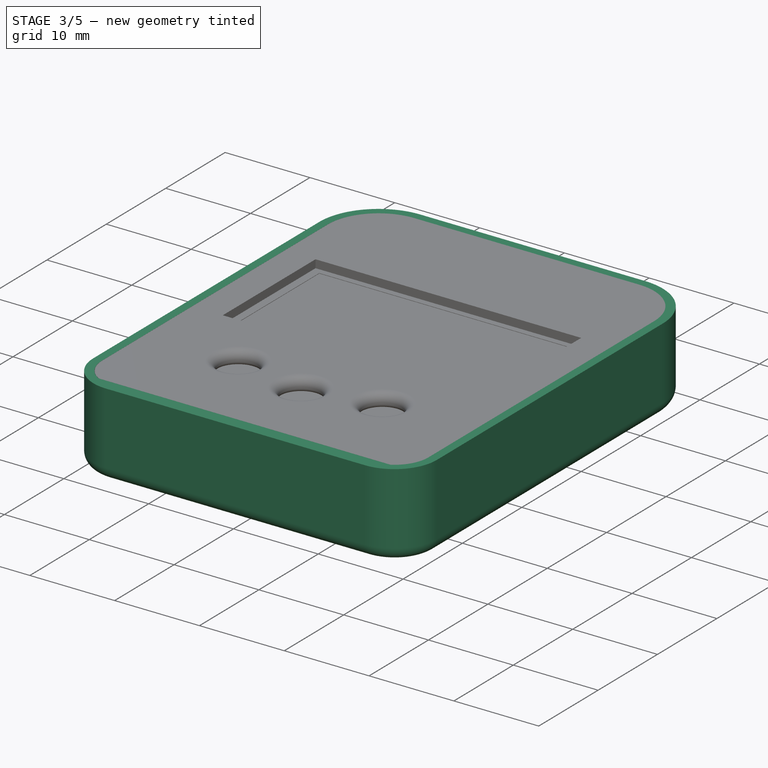
[diagram: stage 3 of 5 — iso view after this stage's code; geometry added in this stage tinted green]
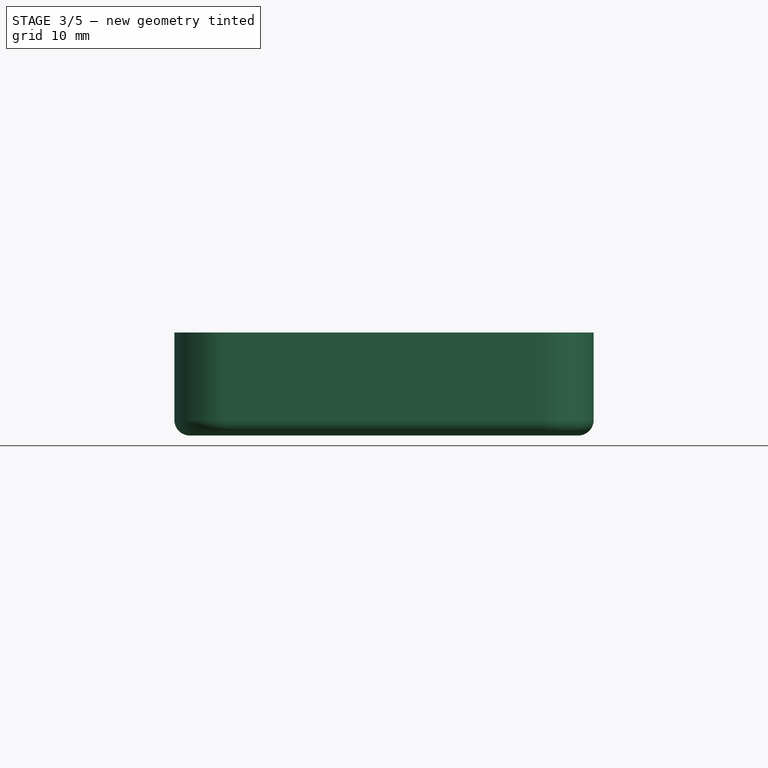
[diagram: stage 3 of 5 — front view after this stage's code; geometry added in this stage tinted green]
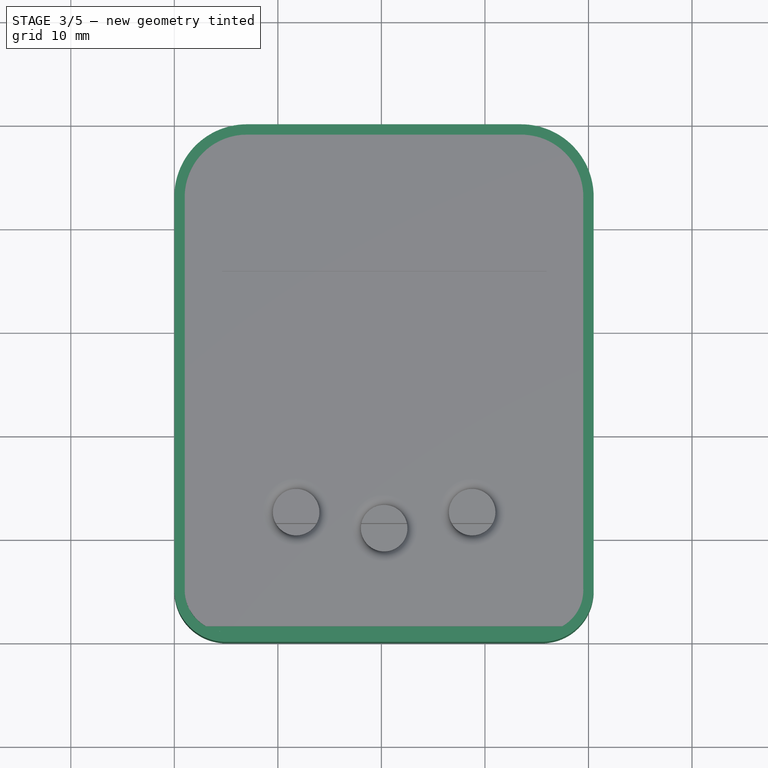
[diagram: stage 3 of 5 — top view after this stage's code; geometry added in this stage tinted green]
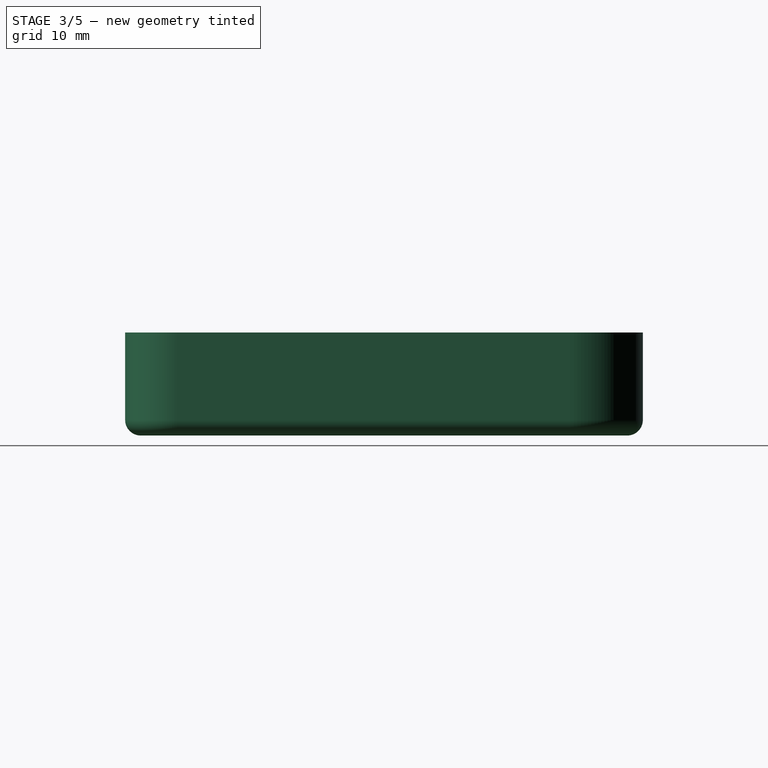
[diagram: stage 3 of 5 — right view after this stage's code; geometry added in this stage tinted green]
FEATURE [Sketcher::SketchObject] Sketch
  MapMode = 5
  Support = -> [XY_Plane]
  sketch-geometry (8):
    g0: LineSegment StartX=5 StartY=0 StartZ=0 EndX=35.5 EndY=0 EndZ=0
    g1: LineSegment StartX=40.5 StartY=5 StartZ=0 EndX=40.5 EndY=43 EndZ=0
    g2: LineSegment StartX=33.5 StartY=50 StartZ=0 EndX=7 EndY=50 EndZ=0
    g3: LineSegment StartX=0 StartY=43 StartZ=0 EndX=0 EndY=5 EndZ=0
    g4: ArcOfCircle CenterX=5 CenterY=5 CenterZ=0 NormalX=0 NormalY=0 NormalZ=1 AngleXU=0 Radius=5 StartAngle=3.14159 EndAngle=4.71239
    g5: ArcOfCircle CenterX=35.5 CenterY=5 CenterZ=0 NormalX=0 NormalY=0 NormalZ=1 AngleXU=0 Radius=5 StartAngle=4.71239 EndAngle=6.28319
    g6: ArcOfCircle CenterX=7 CenterY=43 CenterZ=0 NormalX=0 NormalY=0 NormalZ=1 AngleXU=0 Radius=7 StartAngle=1.5708 EndAngle=3.14159
    g7: ArcOfCircle CenterX=33.5 CenterY=43 CenterZ=0 NormalX=0 NormalY=0 NormalZ=1 AngleXU=0 Radius=7 StartAngle=-9e-16 EndAngle=1.5708
  constraints (20):
    c: Horizontal(g0)
    c: Horizontal(g2)
    c: Vertical(g1)
    c: Vertical(g3)
    c: Tangent(g3,g4) = -1.5708
    c: Tangent(g0,g4) = -1.5708
    c: Tangent(g1,g5) = -1.5708
    c: Tangent(g0,g5) = -1.5708
    c: Tangent(g3,g6) = -1.5708
    c: Tangent(g2,g6) = -1.5708
    c: Tangent(g2,g7) = -1.5708
    c: Tangent(g1,g7) = -1.5708
    c: Radius(g4) = 5
    c: Radius(g5) = 5
    c: Radius(g6) = 7
    c: Radius(g7) = 7
    c: DistanceX(g3,g-1) = 0
    c: DistanceY(g-1,g0) = 0
    c: DistanceY(g0,g2) = 50
    c: Distance(g3,g1) = 40.5
FEATURE [PartDesign::Pad] Pad
  Length = 9.95
  Length2 = 100
  Profile = -> Sketch
  Type = 0
FEATURE [PartDesign::Fillet] Fillet
  Base = -> Pad [Edge6,Edge3,Edge9,Edge12,Edge15,Edge18,Edge21,Edge23]
  BaseFeature = -> Pad
  Radius = 1.5
FEATURE [PartDesign::Plane] DatumPlane
  Length = 61.8892
  MapMode = 5
  Placement = pos=(0,0,9.95) rot=(0,0,1;0rad)
  ResizeMode = 0
  Support = -> [Fillet]
  Width = 75.6037
FEATURE [Sketcher::SketchObject] Sketch001
  MapMode = 5
  Placement = pos=(0,0,9.95) rot=(0,0,1;0rad)
  Support = -> [DatumPlane]
  sketch-geometry (8):
    g0: LineSegment StartX=5 StartY=1 StartZ=0 EndX=35.5 EndY=1 EndZ=0
    g1: LineSegment StartX=39.5 StartY=5 StartZ=0 EndX=39.5 EndY=43 EndZ=0
    g2: LineSegment StartX=33.5 StartY=49 StartZ=0 EndX=7 EndY=49 EndZ=0
    g3: LineSegment StartX=1 StartY=43 StartZ=0 EndX=1 EndY=5 EndZ=0
    g4: ArcOfCircle CenterX=7 CenterY=43 CenterZ=0 NormalX=0 NormalY=0 NormalZ=1 AngleXU=0 Radius=6 StartAngle=1.5708 EndAngle=3.14159
    g5: ArcOfCircle CenterX=33.5 CenterY=43 CenterZ=0 NormalX=0 NormalY=0 NormalZ=1 AngleXU=0 Radius=6 StartAngle=1e-16 EndAngle=1.5708
    g6: ArcOfCircle CenterX=35.5 CenterY=5 CenterZ=0 NormalX=0 NormalY=0 NormalZ=1 AngleXU=0 Radius=4 StartAngle=4.71239 EndAngle=6.28319
    g7: ArcOfCircle CenterX=5 CenterY=5 CenterZ=0 NormalX=0 NormalY=0 NormalZ=1 AngleXU=0 Radius=4 StartAngle=3.14159 EndAngle=4.71239
  constraints (20):
    c: Horizontal(g0)
    c: Horizontal(g2)
    c: Vertical(g1)
    c: Vertical(g3)
    c: Tangent(g3,g4) = -1.5708
    c: Tangent(g2,g4) = -1.5708
    c: Tangent(g2,g5) = -1.5708
    c: Tangent(g1,g5) = -1.5708
    c: Tangent(g1,g6) = -1.5708
    c: Tangent(g0,g6) = -1.5708
    c: Tangent(g0,g7) = -1.5708
    c: Tangent(g3,g7) = -1.5708
    c: Radius(g7) = 4
    c: Radius(g6) = 4
    c: Radius(g4) = 6
    c: Radius(g5) = 6
    c: Distance(g0,g2) = 48
    c: Distance(g3,g1) = 38.5
    c: Distance(g0,g-1) = 1
    c: Distance(g3,g-2) = 1
FEATURE [PartDesign::Pocket] Pocket
  BaseFeature = -> Fillet
  Length = 1.6
  Length2 = 100
  Profile = -> Sketch001
  Type = 0
FEATURE [PartDesign::Plane] DatumPlane001
  Length = 61.8892
  MapMode = 5
  Placement = pos=(0,0,8.35) rot=(0,0,1;0rad)
  ResizeMode = 0
  Support = -> [Pocket]
  Width = 75.6037
FEATURE [Sketcher::SketchObject] Sketch002
  MapMode = 5
  Placement = pos=(0,0,8.35) rot=(0,0,1;0rad)
  Support = -> [Pocket]
  sketch-geometry (16):
    g0: LineSegment StartX=5 StartY=1.5 StartZ=0 EndX=35.5 EndY=1.5 EndZ=0
    g1: LineSegment StartX=38.5 StartY=5 StartZ=0 EndX=38.5 EndY=43 EndZ=0
    g2: LineSegment StartX=2 StartY=43 StartZ=0 EndX=2 EndY=5 EndZ=0
    g3: LineSegment StartX=1.5 StartY=5 StartZ=0 EndX=2 EndY=5 EndZ=0
    g4: LineSegment StartX=38.5 StartY=5 StartZ=0 EndX=39 EndY=5 EndZ=0
    g5: ArcOfCircle CenterX=5 CenterY=5 CenterZ=0 NormalX=0 NormalY=0 NormalZ=1 AngleXU=0 Radius=3.5 StartAngle=3.14159 EndAngle=4.71239
    g6: ArcOfCircle CenterX=35.5 CenterY=5 CenterZ=0 NormalX=0 NormalY=0 NormalZ=1 AngleXU=0 Radius=3.5 StartAngle=4.71239 EndAngle=6.28319
    g7: LineSegment StartX=2 StartY=43 StartZ=0 EndX=1.5 EndY=43 EndZ=0
    g8: LineSegment StartX=38.5 StartY=43 StartZ=0 EndX=39 EndY=43 EndZ=0
    g9: LineSegment StartX=7 StartY=48.5 StartZ=0 EndX=9.77093 EndY=48.5 EndZ=0
    g10: ArcOfCircle CenterX=7 CenterY=43 CenterZ=0 NormalX=0 NormalY=0 NormalZ=1 AngleXU=0 Radius=5.5 StartAngle=1.5708 EndAngle=3.14159
    g11: ArcOfCircle CenterX=33.5 CenterY=43 CenterZ=0 NormalX=0 NormalY=0 NormalZ=1 AngleXU=0 Radius=5.5 StartAngle=5e-15 EndAngle=1.5708
    g12: LineSegment StartX=9.77093 StartY=48.5 StartZ=0 EndX=9.77093 EndY=49 EndZ=0
    g13: LineSegment StartX=30.7709 StartY=48.5 StartZ=0 EndX=30.7709 EndY=49 EndZ=0
    g14: LineSegment StartX=30.7709 StartY=48.5 StartZ=0 EndX=33.5 EndY=48.5 EndZ=0
    g15: LineSegment StartX=9.77093 StartY=49 StartZ=0 EndX=30.7709 EndY=49 EndZ=0
  constraints (50):
    c: Horizontal(g0)
    c: Vertical(g1)
    c: Vertical(g2)
    c: Horizontal(g3)
    c: DistanceY(g-1,g3) = 5
    c: Coincident(g4,g1)
    c: Tangent(g3,g4)
    c: DistanceX(g3,g3) = 0.5
    c: Distance(g3,g-2) = 2
    c: DistanceY(g-1,g0) = 1.5
    c: Coincident(g5,g3)
    c: Coincident(g5,g0)
    c: Radius(g5) = 3.5
    c: Tangent(g0,g5)
    c: Coincident(g2,g3)
    c: Distance(g2,g1) = 36.5
    c: Distance(g4) = 0.5
    c: Coincident(g6,g4)
    c: Coincident(g6,g0)
    c: Radius(g6) = 3.5
    c: Tangent(g0,g6)
    c: DistanceY(g2,g2) = 38
    c: DistanceY(g1,g1) = 38
    c: Coincident(g7,g2)
    c: Horizontal(g7)
    c: DistanceX(g7,g7) = 0.5
    c: Coincident(g8,g1)
    c: Horizontal(g8)
    c: DistanceX(g8,g8) = 0.5
    c: Horizontal(g9)
    c: Coincident(g10,g7)
    c: Coincident(g10,g9)
    c: Radius(g10) = 5.5
    c: Coincident(g11,g14)
    c: Coincident(g11,g8)
    c: Radius(g11) = 5.5
    c: Tangent(g9,g11)
    c: Tangent(g10,g9)
    c: Vertical(g12)
    c: Vertical(g13)
    c: Coincident(g9,g12)
    c: Coincident(g14,g13)
    c: Tangent(g9,g14)
    c: DistanceY(g12,g12) = 0.5
    c: DistanceY(g13,g13) = 0.5
    c: Coincident(g15,g12)
    c: Coincident(g15,g13)
    c: Distance(g0,g15) = 47.5
    c: DistanceX(g0,g0) = 30.5
    c: DistanceX(g15,g15) = 21
FEATURE [PartDesign::Pocket] Pocket001
  BaseFeature = -> Pocket
  Length = 7.15
  Length2 = 100
  Profile = -> Sketch002
  Type = 0
FEATURE [PartDesign::Plane] DatumPlane002
  Length = 61.8892
  MapMode = 5
  Placement = pos=(0,0,8.35) rot=(0,0,1;0rad)
  ResizeMode = 0
  Support = -> [Pocket001]
  Width = 75.6037
FEATURE [Sketcher::SketchObject] Sketch003
  ExternalGeometry = -> [Pocket001]
  MapMode = 5
  Placement = pos=(0,0,8.35) rot=(0,0,1;0rad)
  Support = -> [DatumPlane002]
  sketch-geometry (4):
    g0: LineSegment StartX=3.06321 StartY=1.5 StartZ=0 EndX=37.4365 EndY=1.5 EndZ=0
    g1: LineSegment StartX=5.03607 StartY=1 StartZ=0 EndX=35.5 EndY=1 EndZ=0
    g2: ArcOfCircle CenterX=5 CenterY=4.99984 CenterZ=0 NormalX=0 NormalY=0 NormalZ=1 AngleXU=0 Radius=4 StartAngle=4.20694 EndAngle=4.72141
    g3: ArcOfCircle CenterX=35.5 CenterY=5 CenterZ=0 NormalX=0 NormalY=0 NormalZ=1 AngleXU=0 Radius=4 StartAngle=4.71239 EndAngle=5.21775
  constraints (10):
    c: Radius(g-3) = 4
    c: Horizontal(g0)
    c: Coincident(g1,g-3)
    c: DistanceY(g-1,g1) = 1
    c: Coincident(g2,g1)
    c: Radius(g2) = 4
    c: Coincident(g2,g0)
    c: Coincident(g3,g1)
    c: Radius(g3) = 4
    c: Coincident(g3,g0)
FEATURE [PartDesign::Pad] Pad001
  BaseFeature = -> Pocket001
  Length = 1.6
  Length2 = 100
  Profile = -> Sketch003
  Type = 0
FEATURE [PartDesign::Plane] DatumPlane003
  Length = 56.8561
  MapMode = 5
  Placement = pos=(1.67e-14,49,0) rot=(1,0,0;1.5708rad)
  ResizeMode = 0
  Support = -> [Pad001]
  Width = 26.3561
FEATURE [Sketcher::SketchObject] Sketch004
  ExternalGeometry = -> [Pad001]
  MapMode = 5
  Placement = pos=(1.67e-14,49,0) rot=(1,0,0;1.5708rad)
  Support = -> [DatumPlane003]
  sketch-geometry (8):
    g0: LineSegment StartX=9.77093 StartY=8.35 StartZ=0 EndX=30.7709 EndY=8.35 EndZ=0
    g1: LineSegment StartX=9.77093 StartY=8.35 StartZ=0 EndX=9.77093 EndY=6.35 EndZ=0
    g2: LineSegment StartX=9.77093 StartY=6.35 StartZ=0 EndX=12.6509 EndY=6.35 EndZ=0
    g3: LineSegment StartX=12.6509 StartY=6.35 StartZ=0 EndX=12.6509 EndY=1.2 EndZ=0
    g4: LineSegment StartX=12.6509 StartY=1.2 StartZ=0 EndX=27.8909 EndY=1.2 EndZ=0
    g5: LineSegment StartX=30.7709 StartY=8.35 StartZ=0 EndX=30.7709 EndY=6.35 EndZ=0
    g6: LineSegment StartX=27.8909 StartY=1.2 StartZ=0 EndX=27.8909 EndY=6.35 EndZ=0
    g7: LineSegment StartX=27.8909 StartY=6.35 StartZ=0 EndX=30.7709 EndY=6.35 EndZ=0
  constraints (22):
    c: Coincident(g0,g-4)
    c: Coincident(g0,g-6)
    c: Coincident(g1,g0)
    c: Coincident(g2,g1)
    c: Coincident(g3,g2)
    c: Coincident(g5,g0)
    c: Coincident(g6,g4)
    c: Coincident(g7,g5)
    c: Coincident(g7,g6)
    c: PointOnObject(g1,g-4)
    c: PointOnObject(g5,g-6)
    c: PointOnObject(g4,g-5)
    c: PointOnObject(g3,g-5)
    c: DistanceX(g7,g7) = 2.88
    c: Vertical(g6)
    c: Vertical(g3)
    c: DistanceX(g2,g2) = 2.88
    c: DistanceY(g6,g6) = 5.15
    c: DistanceY(g3,g3) = 5.15
    c: DistanceX(g4,g4) = 15.24
    c: DistanceY(g1,g1) = 2
    c: DistanceY(g5,g5) = 2
FEATURE [PartDesign::Pocket] Pocket002
  BaseFeature = -> Pad001
  Length = 0.5
  Length2 = 100
  Profile = -> Sketch004
  Type = 0
FEATURE [PartDesign::Plane] DatumPlane004
  Length = 56.8561
  MapMode = 5
  Placement = pos=(1.67e-14,49,0) rot=(1,0,0;1.5708rad)
  ResizeMode = 0
  Support = -> [Pocket002]
  Width = 26.3561
FEATURE [Sketcher::SketchObject] Sketch005
  ExternalGeometry = -> [Pocket002]
  MapMode = 5
  Placement = pos=(1.67e-14,49,0) rot=(1,0,0;1.5708rad)
  Support = -> [DatumPlane004]
  sketch-geometry (8):
    g0: LineSegment StartX=12.6509 StartY=1.2 StartZ=0 EndX=9.77093 EndY=1.2 EndZ=0
    g1: LineSegment StartX=9.77093 StartY=1.2 StartZ=0 EndX=9.77093 EndY=6.35 EndZ=0
    g2: LineSegment StartX=9.77093 StartY=6.35 StartZ=0 EndX=12.6509 EndY=6.35 EndZ=0
    g3: LineSegment StartX=12.6509 StartY=6.35 StartZ=0 EndX=12.6509 EndY=1.2 EndZ=0
    g4: LineSegment StartX=27.8909 StartY=1.2 StartZ=0 EndX=30.7709 EndY=1.2 EndZ=0
    g5: LineSegment StartX=30.7709 StartY=1.2 StartZ=0 EndX=30.7709 EndY=6.35 EndZ=0
    g6: LineSegment StartX=30.7709 StartY=6.35 StartZ=0 EndX=27.8909 EndY=6.35 EndZ=0
    g7: LineSegment StartX=27.8909 StartY=6.35 StartZ=0 EndX=27.8909 EndY=1.2 EndZ=0
  constraints (22):
    c: Coincident(g0,g1)
    c: Coincident(g1,g2)
    c: Coincident(g2,g3)
    c: Coincident(g3,g0)
    c: Horizontal(g0)
    c: Horizontal(g2)
    c: Vertical(g1)
    c: Vertical(g3)
    c: Coincident(g0,g-3)
    c: DistanceX(g0,g0) = 2.88
    c: DistanceY(g3,g3) = 5.15
    c: Coincident(g4,g5)
    c: Coincident(g5,g6)
    c: Coincident(g6,g7)
    c: Coincident(g7,g4)
    c: Horizontal(g4)
    c: Horizontal(g6)
    c: Vertical(g5)
    c: Vertical(g7)
    c: Coincident(g4,g-4)
    c: DistanceX(g4,g4) = 2.88
    c: DistanceY(g7,g7) = 5.15
FEATURE [PartDesign::Pad] Pad002
  BaseFeature = -> Pocket002
  Length = 1.5
  Length2 = 100
  Profile = -> Sketch005
  Type = 0
FEATURE [Sketcher::SketchObject] Sketch029
  ExternalGeometry = -> [Pocket008]
  MapMode = 5
  Placement = pos=(0,0,8.35) rot=(1,0,0;3.14159rad)
  Support = -> [Pocket008]
  sketch-geometry (4):
    g0: Circle CenterX=6.7643 CenterY=-44.5078 CenterZ=0 NormalX=0 NormalY=0 NormalZ=1 AngleXU=0 Radius=2.95
    g1: Circle CenterX=6.7643 CenterY=-44.5078 CenterZ=0 NormalX=0 NormalY=0 NormalZ=1 AngleXU=0 Radius=0.9
    g2: Circle CenterX=33.7643 CenterY=-44.5078 CenterZ=0 NormalX=0 NormalY=0 NormalZ=1 AngleXU=0 Radius=2.95
    g3: Circle CenterX=33.7643 CenterY=-44.5078 CenterZ=0 NormalX=0 NormalY=0 NormalZ=1 AngleXU=0 Radius=0.9
  constraints (10):
    c: Coincident(g1,g0)
    c: Coincident(g3,g2)
    c: Diameter(g2) = 5.9
    c: Diameter(g0) = 5.9
    c: Diameter(g1) = 1.8
    c: Diameter(g3) = 1.8
    c: Distance(g0,g-3) = 5.75
    c: Distance(g2,g-4) = 5.75
    c: Distance(g0,g-5) = 4.5
    c: Distance(g2,g-5) = 4.5
FEATURE [PartDesign::Pad] Pad017
  BaseFeature = -> Pocket008
  Length = 3.15
  Length2 = 100
  Profile = -> Sketch029
  Type = 0
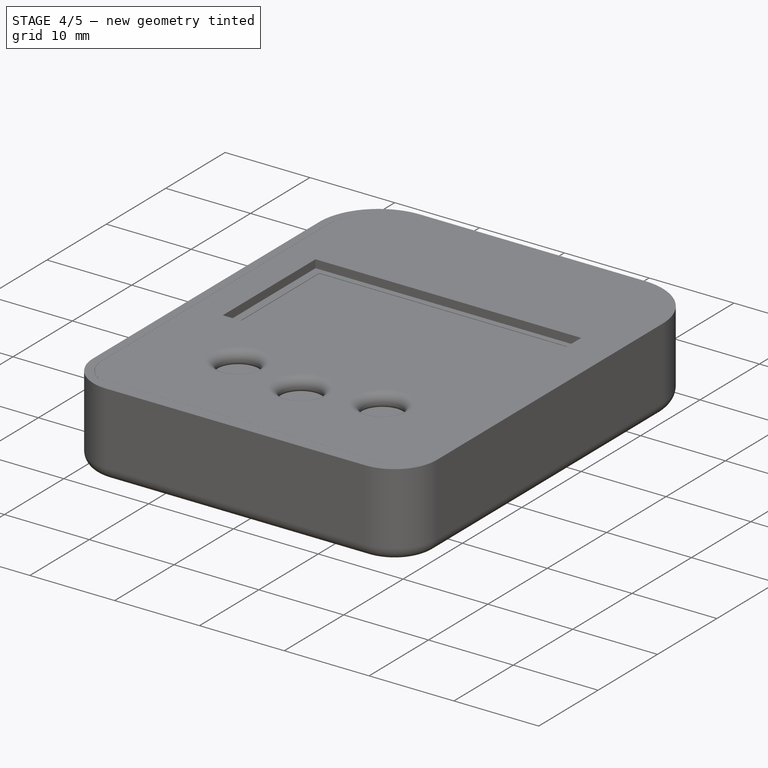
[diagram: stage 4 of 5 — iso view after this stage's code; geometry added in this stage tinted green]
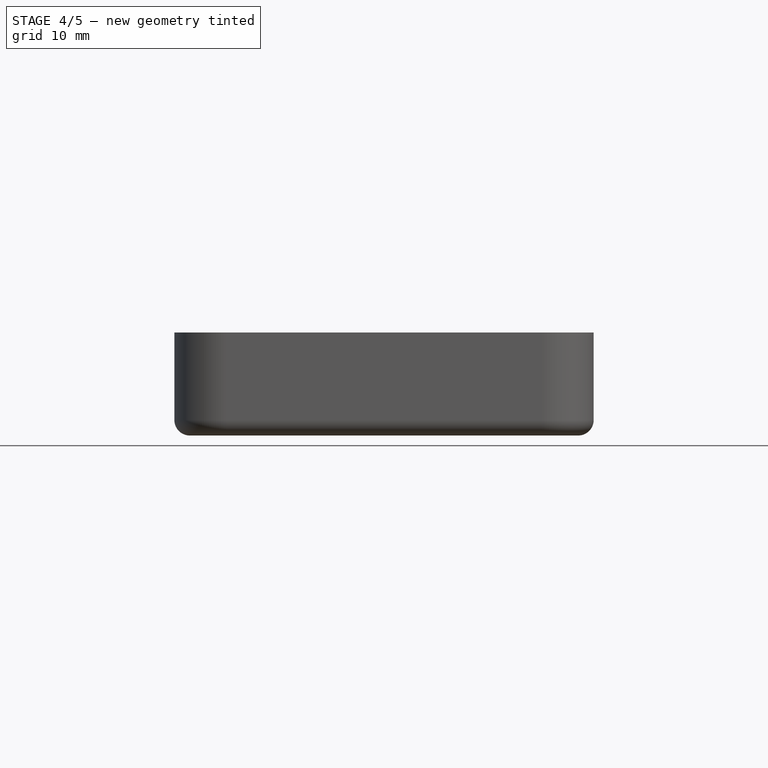
[diagram: stage 4 of 5 — front view after this stage's code; geometry added in this stage tinted green]
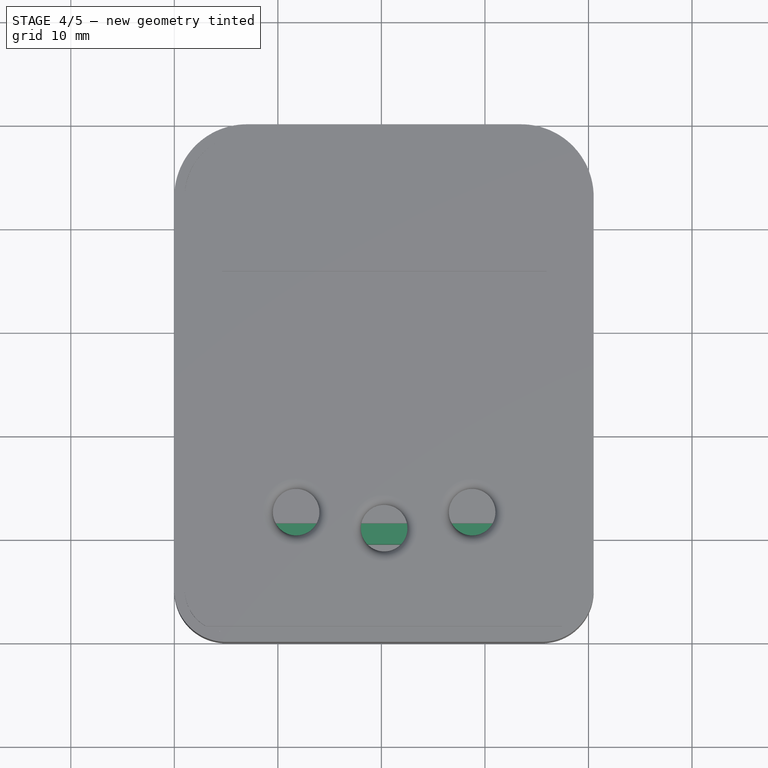
[diagram: stage 4 of 5 — top view after this stage's code; geometry added in this stage tinted green]
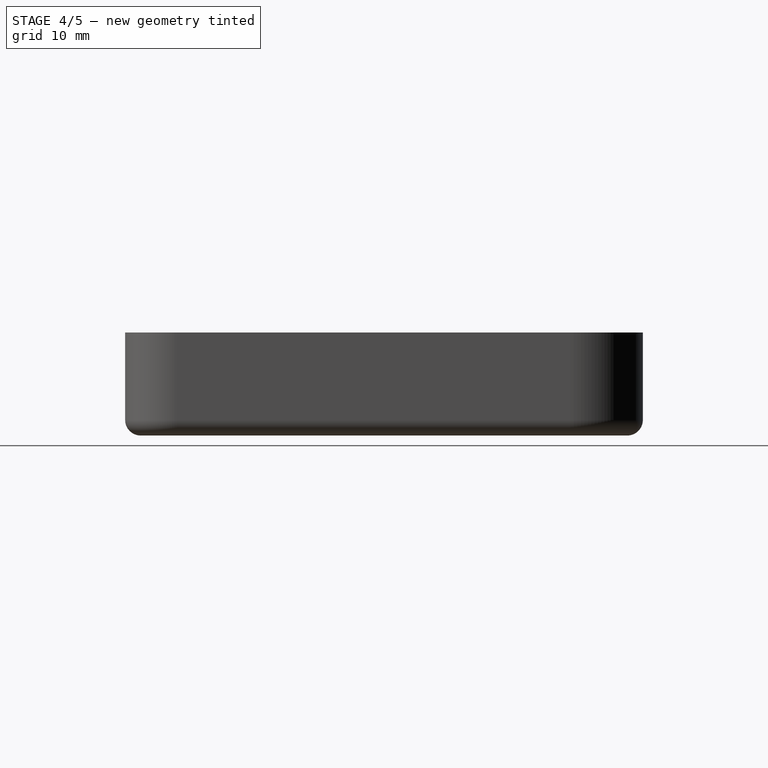
[diagram: stage 4 of 5 — right view after this stage's code; geometry added in this stage tinted green]
FEATURE [PartDesign::Plane] DatumPlane005
  Length = 56.8561
  MapMode = 5
  Placement = pos=(0,48.5,0) rot=(1,0,0;1.5708rad)
  ResizeMode = 0
  Support = -> [Pad002]
  Width = 26.3561
FEATURE [Sketcher::SketchObject] Sketch006
  ExternalGeometry = -> [Pad002]
  MapMode = 5
  Placement = pos=(0,48.5,0) rot=(1,0,0;1.5708rad)
  Support = -> [DatumPlane005]
  sketch-geometry (8):
    g0: LineSegment StartX=9.77093 StartY=1.2 StartZ=0 EndX=7.02093 EndY=1.2 EndZ=0
    g1: LineSegment StartX=7.02093 StartY=1.2 StartZ=0 EndX=7.02093 EndY=7.35 EndZ=0
    g2: LineSegment StartX=7.02093 StartY=7.35 StartZ=0 EndX=9.77093 EndY=7.35 EndZ=0
    g3: LineSegment StartX=9.77093 StartY=7.35 StartZ=0 EndX=9.77093 EndY=1.2 EndZ=0
    g4: LineSegment StartX=30.7709 StartY=1.2 StartZ=0 EndX=33.5209 EndY=1.2 EndZ=0
    g5: LineSegment StartX=33.5209 StartY=1.2 StartZ=0 EndX=33.5209 EndY=7.35 EndZ=0
    g6: LineSegment StartX=33.5209 StartY=7.35 StartZ=0 EndX=30.7709 EndY=7.35 EndZ=0
    g7: LineSegment StartX=30.7709 StartY=7.35 StartZ=0 EndX=30.7709 EndY=1.2 EndZ=0
  constraints (22):
    c: Coincident(g0,g1)
    c: Coincident(g1,g2)
    c: Coincident(g2,g3)
    c: Coincident(g3,g0)
    c: Horizontal(g0)
    c: Horizontal(g2)
    c: Vertical(g1)
    c: Vertical(g3)
    c: Coincident(g0,g-3)
    c: Coincident(g4,g5)
    c: Coincident(g5,g6)
    c: Coincident(g6,g7)
    c: Coincident(g7,g4)
    c: Horizontal(g4)
    c: Horizontal(g6)
    c: Vertical(g5)
    c: Vertical(g7)
    c: Coincident(g4,g-4)
    c: DistanceX(g0,g0) = 2.75
    c: DistanceX(g4,g4) = 2.75
    c: DistanceY(g3,g3) = 6.15
    c: DistanceY(g7,g7) = 6.15
FEATURE [PartDesign::Pad] Pad003
  BaseFeature = -> Pad002
  Length = 1
  Length2 = 100
  Profile = -> Sketch006
  Type = 0
FEATURE [PartDesign::Plane] DatumPlane006
  Length = 71.3819
  MapMode = 5
  Placement = pos=(38.5,0,0) rot=(0.57735,-0.57735,-0.57735;2.0944rad)
  ResizeMode = 0
  Support = -> [Pad003]
  Width = 27.1674
FEATURE [Sketcher::SketchObject] Sketch007
  ExternalGeometry = -> [Pad003]
  MapMode = 5
  Placement = pos=(38.5,0,0) rot=(0.57735,-0.57735,-0.57735;2.0944rad)
  Support = -> [DatumPlane006]
  sketch-geometry (8):
    g0: LineSegment StartX=-43 StartY=1.2 StartZ=0 EndX=-38 EndY=1.2 EndZ=0
    g1: LineSegment StartX=-38 StartY=1.2 StartZ=0 EndX=-38 EndY=8.35 EndZ=0
    g2: LineSegment StartX=-38 StartY=8.35 StartZ=0 EndX=-43 EndY=8.35 EndZ=0
    g3: LineSegment StartX=-43 StartY=8.35 StartZ=0 EndX=-43 EndY=1.2 EndZ=0
    g4: LineSegment StartX=-5 StartY=1.2 StartZ=0 EndX=-9.537 EndY=1.2 EndZ=0
    g5: LineSegment StartX=-9.537 StartY=1.2 StartZ=0 EndX=-9.537 EndY=8.35 EndZ=0
    g6: LineSegment StartX=-9.537 StartY=8.35 StartZ=0 EndX=-5 EndY=8.35 EndZ=0
    g7: LineSegment StartX=-5 StartY=8.35 StartZ=0 EndX=-5 EndY=1.2 EndZ=0
  constraints (22):
    c: Coincident(g0,g1)
    c: Coincident(g1,g2)
    c: Coincident(g2,g3)
    c: Coincident(g3,g0)
    c: Horizontal(g0)
    c: Horizontal(g2)
    c: Vertical(g1)
    c: Vertical(g3)
    c: Coincident(g0,g-3)
    c: DistanceX(g0,g0) = 5
    c: DistanceY(g3,g3) = 7.15
    c: Coincident(g4,g5)
    c: Coincident(g5,g6)
    c: Coincident(g6,g7)
    c: Coincident(g7,g4)
    c: Horizontal(g4)
    c: Horizontal(g6)
    c: Vertical(g5)
    c: Vertical(g7)
    c: Coincident(g4,g-4)
    c: DistanceX(g4,g4) = 4.537
    c: DistanceY(g7,g7) = 7.15
FEATURE [PartDesign::Pad] Pad004
  BaseFeature = -> Pad003
  Length = 0.6
  Length2 = 100
  Profile = -> Sketch007
  Type = 0
FEATURE [PartDesign::Plane] DatumPlane007
  Length = 71.3819
  MapMode = 5
  Placement = pos=(2,0,0) rot=(0.57735,0.57735,0.57735;2.0944rad)
  ResizeMode = 0
  Support = -> [Pad004]
  Width = 27.1674
FEATURE [Sketcher::SketchObject] Sketch008
  ExternalGeometry = -> [Pad004]
  MapMode = 5
  Placement = pos=(2,0,0) rot=(0.57735,0.57735,0.57735;2.0944rad)
  Support = -> [DatumPlane007]
  sketch-geometry (8):
    g0: LineSegment StartX=43 StartY=8.35 StartZ=0 EndX=38 EndY=8.35 EndZ=0
    g1: LineSegment StartX=38 StartY=8.35 StartZ=0 EndX=38 EndY=6.35 EndZ=0
    g2: LineSegment StartX=38 StartY=6.35 StartZ=0 EndX=43 EndY=6.35 EndZ=0
    g3: LineSegment StartX=43 StartY=6.35 StartZ=0 EndX=43 EndY=8.35 EndZ=0
    g4: LineSegment StartX=5 StartY=8.35 StartZ=0 EndX=9.5 EndY=8.35 EndZ=0
    g5: LineSegment StartX=9.5 StartY=8.35 StartZ=0 EndX=9.5 EndY=1.2 EndZ=0
    g6: LineSegment StartX=9.5 StartY=1.2 StartZ=0 EndX=5 EndY=1.2 EndZ=0
    g7: LineSegment StartX=5 StartY=1.2 StartZ=0 EndX=5 EndY=8.35 EndZ=0
  constraints (22):
    c: Coincident(g0,g1)
    c: Coincident(g1,g2)
    c: Coincident(g2,g3)
    c: Coincident(g3,g0)
    c: Horizontal(g0)
    c: Horizontal(g2)
    c: Vertical(g1)
    c: Vertical(g3)
    c: Coincident(g0,g-3)
    c: DistanceX(g0,g0) = 5
    c: DistanceY(g3,g3) = 2
    c: Coincident(g4,g5)
    c: Coincident(g5,g6)
    c: Coincident(g6,g7)
    c: Coincident(g7,g4)
    c: Horizontal(g4)
    c: Horizontal(g6)
    c: Vertical(g5)
    c: Vertical(g7)
    c: Coincident(g4,g-4)
    c: DistanceX(g4,g4) = 4.5
    c: DistanceY(g7,g7) = 7.15
FEATURE [PartDesign::Pad] Pad005
  BaseFeature = -> Pad004
  Length = 0.6
  Length2 = 100
  Profile = -> Sketch008
  Type = 0
FEATURE [PartDesign::Plane] DatumPlane008
  Length = 71.3819
  MapMode = 5
  Placement = pos=(2.6,0,0) rot=(0.57735,0.57735,0.57735;2.0944rad)
  ResizeMode = 0
  Support = -> [Pad005]
  Width = 27.1674
FEATURE [Sketcher::SketchObject] Sketch009
  ExternalGeometry = -> [Pad005]
  MapMode = 5
  Placement = pos=(2.6,0,0) rot=(0.57735,0.57735,0.57735;2.0944rad)
  Support = -> [DatumPlane008]
  sketch-geometry (4):
    g0: LineSegment StartX=5 StartY=1.2 StartZ=0 EndX=9.5 EndY=1.2 EndZ=0
    g1: LineSegment StartX=9.5 StartY=1.2 StartZ=0 EndX=9.5 EndY=6.35 EndZ=0
    g2: LineSegment StartX=9.5 StartY=6.35 StartZ=0 EndX=5 EndY=6.35 EndZ=0
    g3: LineSegment StartX=5 StartY=6.35 StartZ=0 EndX=5 EndY=1.2 EndZ=0
  constraints (11):
    c: Coincident(g0,g1)
    c: Coincident(g1,g2)
    c: Coincident(g2,g3)
    c: Coincident(g3,g0)
    c: Horizontal(g0)
    c: Horizontal(g2)
    c: Vertical(g1)
    c: Vertical(g3)
    c: Coincident(g0,g-3)
    c: DistanceX(g0,g0) = 4.5
    c: DistanceY(g3,g3) = 5.15
FEATURE [PartDesign::Pad] Pad006
  BaseFeature = -> Pad005
  Length = 1.15
  Length2 = 100
  Profile = -> Sketch009
  Type = 0
FEATURE [PartDesign::Plane] DatumPlane009
  Length = 71.3819
  MapMode = 5
  Placement = pos=(37.9,0,0) rot=(0.57735,-0.57735,-0.57735;2.0944rad)
  ResizeMode = 0
  Support = -> [Pad006]
  Width = 27.1674
FEATURE [Sketcher::SketchObject] Sketch010
  ExternalGeometry = -> [Pad006]
  MapMode = 5
  Placement = pos=(37.9,0,0) rot=(0.57735,-0.57735,-0.57735;2.0944rad)
  Support = -> [DatumPlane009]
  sketch-geometry (4):
    g0: LineSegment StartX=-5 StartY=1.2 StartZ=0 EndX=-9.537 EndY=1.2 EndZ=0
    g1: LineSegment StartX=-9.537 StartY=1.2 StartZ=0 EndX=-9.537 EndY=6.35 EndZ=0
    g2: LineSegment StartX=-9.537 StartY=6.35 StartZ=0 EndX=-5 EndY=6.35 EndZ=0
    g3: LineSegment StartX=-5 StartY=6.35 StartZ=0 EndX=-5 EndY=1.2 EndZ=0
  constraints (11):
    c: Coincident(g0,g1)
    c: Coincident(g1,g2)
    c: Coincident(g2,g3)
    c: Coincident(g3,g0)
    c: Horizontal(g0)
    c: Horizontal(g2)
    c: Vertical(g1)
    c: Vertical(g3)
    c: Coincident(g0,g-3)
    c: DistanceX(g0,g0) = 4.537
    c: DistanceY(g3,g3) = 5.15
FEATURE [PartDesign::Pad] Pad007
  BaseFeature = -> Pad006
  Length = 1.15
  Length2 = 100
  Profile = -> Sketch010
  Type = 0
FEATURE [PartDesign::Plane] DatumPlane010
  Length = 61.8892
  MapMode = 5
  Placement = pos=(0,0,1.2) rot=(0,0,1;0rad)
  ResizeMode = 0
  Support = -> [Pad007]
  Width = 75.6037
FEATURE [Sketcher::SketchObject] Sketch011
  ExternalGeometry = -> [Pad007]
  MapMode = 5
  Placement = pos=(0,0,1.2) rot=(0,0,1;0rad)
  Support = -> [DatumPlane010]
  sketch-geometry (4):
    g0: LineSegment StartX=38.5 StartY=9.537 StartZ=0 EndX=8 EndY=9.537 EndZ=0
    g1: LineSegment StartX=8 StartY=9.537 StartZ=0 EndX=8 EndY=11.537 EndZ=0
    g2: LineSegment StartX=8 StartY=11.537 StartZ=0 EndX=38.5 EndY=11.537 EndZ=0
    g3: LineSegment StartX=38.5 StartY=11.537 StartZ=0 EndX=38.5 EndY=9.537 EndZ=0
  constraints (11):
    c: Coincident(g0,g1)
    c: Coincident(g1,g2)
    c: Coincident(g2,g3)
    c: Coincident(g3,g0)
    c: Horizontal(g0)
    c: Horizontal(g2)
    c: Vertical(g1)
    c: Vertical(g3)
    c: Coincident(g0,g-3)
    c: DistanceX(g0,g0) = 30.5
    c: DistanceY(g1,g1) = 2
FEATURE [PartDesign::Pad] Pad008
  BaseFeature = -> Pad007
  Length = 3
  Length2 = 100
  Profile = -> Sketch011
  Type = 0
FEATURE [Sketcher::SketchObject] Sketch012
  ExternalGeometry = -> [Pad008]
  MapMode = 5
  Placement = pos=(0,0,1.2) rot=(0,0,1;0rad)
  Support = -> [DatumPlane010]
  sketch-geometry (2):
    g0: Circle CenterX=6.75 CenterY=44.5 CenterZ=0 NormalX=0 NormalY=0 NormalZ=1 AngleXU=0 Radius=2.2
    g1: Circle CenterX=33.75 CenterY=44.5 CenterZ=0 NormalX=0 NormalY=0 NormalZ=1 AngleXU=0 Radius=2.2
  constraints (6):
    c: DistanceX(g-4,g0) = 6.75
    c: DistanceX(g1,g-5) = 6.75
    c: DistanceY(g0,g-3) = 5.5
    c: DistanceY(g1,g-3) = 5.5
    c: Diameter(g0) = 4.4
    c: Diameter(g1) = 4.4
FEATURE [PartDesign::Pocket] Pocket003
  BaseFeature = -> Pad008
  Length = 1.2
  Length2 = 100
  Profile = -> Sketch012
  Type = 0
FEATURE [Sketcher::SketchObject] Sketch013
  ExternalGeometry = -> [Pocket003]
  MapMode = 5
  Placement = pos=(0,0,1.2) rot=(0,0,1;0rad)
  Support = -> [DatumPlane010]
  sketch-geometry (4):
    g0: Circle CenterX=6.75 CenterY=44.5 CenterZ=0 NormalX=0 NormalY=0 NormalZ=1 AngleXU=0 Radius=2.95
    g1: Circle CenterX=33.75 CenterY=44.5 CenterZ=0 NormalX=0 NormalY=0 NormalZ=1 AngleXU=0 Radius=2.95
    g2: Circle CenterX=6.75 CenterY=44.5 CenterZ=0 NormalX=0 NormalY=0 NormalZ=1 AngleXU=0 Radius=2.2
    g3: Circle CenterX=33.75 CenterY=44.5 CenterZ=0 NormalX=0 NormalY=0 NormalZ=1 AngleXU=0 Radius=2.2
  constraints (8):
    c: Coincident(g0,g-3)
    c: Coincident(g1,g-4)
    c: Diameter(g0) = 5.9
    c: Diameter(g1) = 5.9
    c: Coincident(g2,g0)
    c: Coincident(g3,g1)
    c: Diameter(g3) = 4.4
    c: Diameter(g2) = 4.4
FEATURE [PartDesign::Pad] Pad009
  BaseFeature = -> Pocket003
  Length = 1.6
  Length2 = 100
  Profile = -> Sketch013
  Type = 0
FEATURE [PartDesign::Plane] DatumPlane011
  Length = 61.8892
  MapMode = 5
  Placement = pos=(0,0,2.8) rot=(0,0,1;0rad)
  ResizeMode = 0
  Support = -> [Pad009]
  Width = 75.6037
FEATURE [Sketcher::SketchObject] Sketch014
  ExternalGeometry = -> [Pad009]
  MapMode = 5
  Placement = pos=(0,0,2.8) rot=(0,0,1;0rad)
  Support = -> [DatumPlane011]
  sketch-geometry (4):
    g0: Circle CenterX=6.75 CenterY=44.5 CenterZ=0 NormalX=0 NormalY=0 NormalZ=1 AngleXU=0 Radius=2.95
    g1: Circle CenterX=6.75 CenterY=44.5 CenterZ=0 NormalX=0 NormalY=0 NormalZ=1 AngleXU=0 Radius=1.1
    g2: Circle CenterX=33.75 CenterY=44.5 CenterZ=0 NormalX=0 NormalY=0 NormalZ=1 AngleXU=0 Radius=2.95
    g3: Circle CenterX=33.75 CenterY=44.5 CenterZ=0 NormalX=0 NormalY=0 NormalZ=1 AngleXU=0 Radius=1.1
  constraints (8):
    c: Coincident(g0,g-3)
    c: Coincident(g1,g0)
    c: Coincident(g2,g-4)
    c: Coincident(g3,g2)
    c: Diameter(g2) = 5.9
    c: Diameter(g0) = 5.9
    c: Diameter(g1) = 2.2
    c: Diameter(g3) = 2.2
FEATURE [PartDesign::Pad] Pad010
  BaseFeature = -> Pad009
  Length = 2.4
  Length2 = 100
  Profile = -> Sketch014
  Type = 0
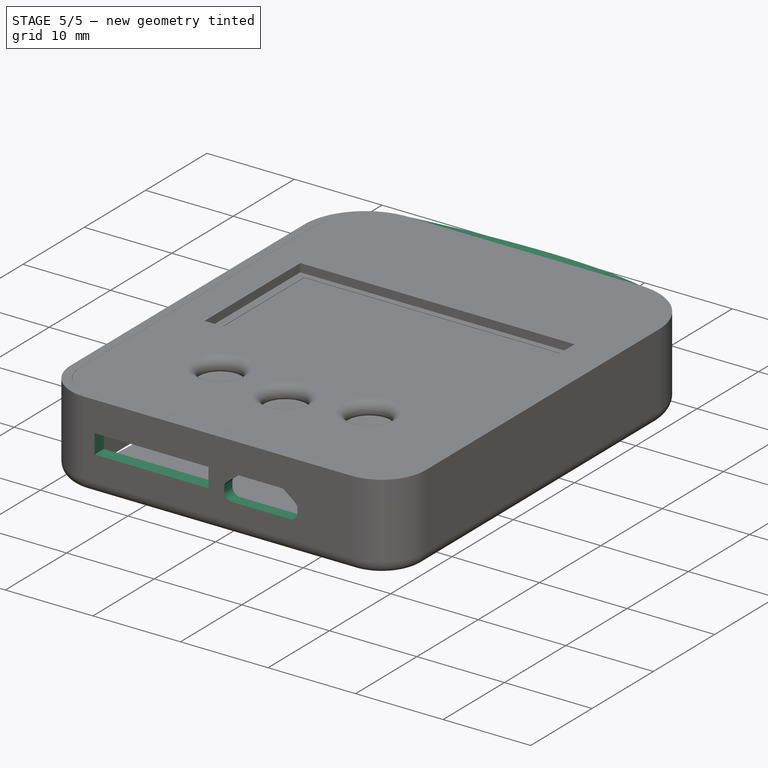
[diagram: stage 5 of 5 — iso view after this stage's code; geometry added in this stage tinted green]
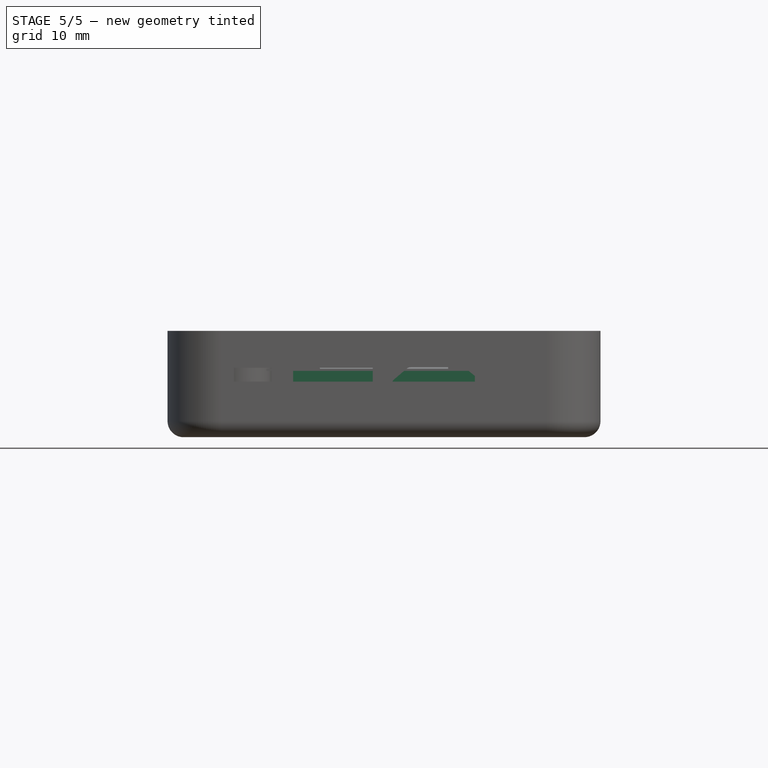
[diagram: stage 5 of 5 — front view after this stage's code; geometry added in this stage tinted green]
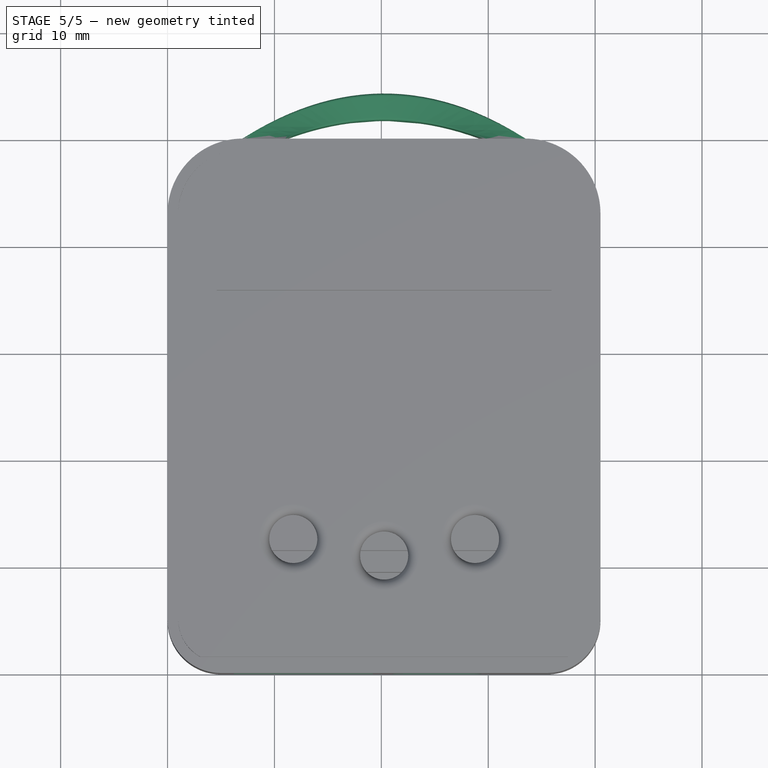
[diagram: stage 5 of 5 — top view after this stage's code; geometry added in this stage tinted green]
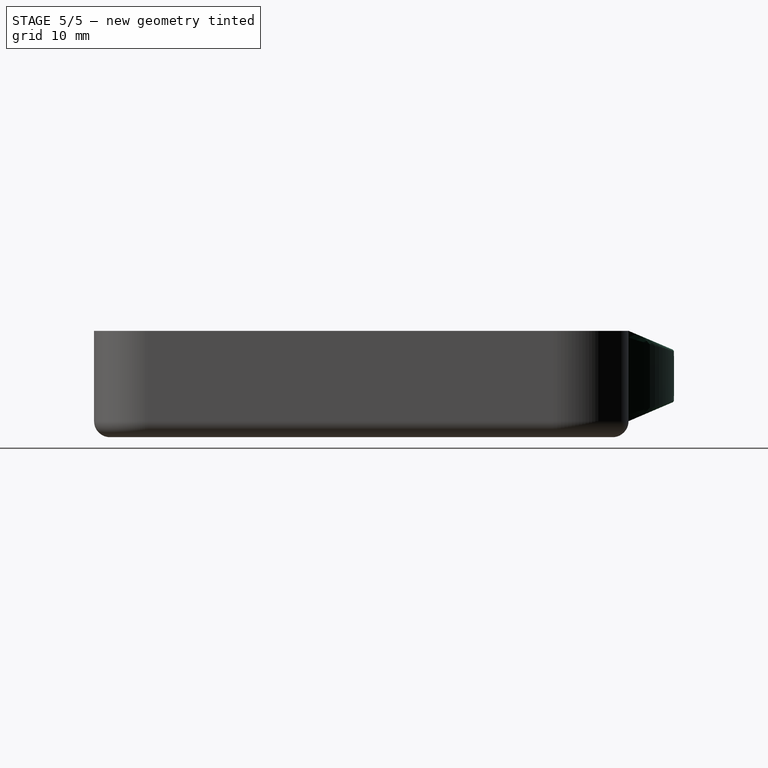
[diagram: stage 5 of 5 — right view after this stage's code; geometry added in this stage tinted green]
FEATURE [Sketcher::SketchObject] Sketch015
  ExternalGeometry = -> [Pad010]
  MapMode = 5
  Placement = pos=(0,0,1.2) rot=(0,0,1;0rad)
  Support = -> [DatumPlane010]
  sketch-geometry (4):
    g0: LineSegment StartX=6.75 StartY=41.55 StartZ=0 EndX=33.75 EndY=41.55 EndZ=0
    g1: LineSegment StartX=9.2412 StartY=42.92 StartZ=0 EndX=31.2588 EndY=42.92 EndZ=0
    g2: ArcOfCircle CenterX=6.75 CenterY=44.5 CenterZ=0 NormalX=0 NormalY=0 NormalZ=1 AngleXU=0 Radius=2.95 StartAngle=4.71239 EndAngle=5.71798
    g3: ArcOfCircle CenterX=33.75 CenterY=44.5 CenterZ=0 NormalX=0 NormalY=0 NormalZ=1 AngleXU=0 Radius=2.95 StartAngle=3.7068 EndAngle=4.71239
  constraints (8):
    c: Horizontal(g0)
    c: Tangent(g0,g-3)
    c: Horizontal(g1)
    c: Distance(g0,g1) = 1.37
    c: Coincident(g2,g0)
    c: Coincident(g3,g0)
    c: Coincident(g3,g1)
    c: Coincident(g2,g1)
FEATURE [PartDesign::Pad] Pad011
  BaseFeature = -> Pad010
  Length = 4
  Length2 = 100
  Profile = -> Sketch015
  Type = 0
FEATURE [PartDesign::Plane] DatumPlane012
  Length = 61.8892
  MapMode = 5
  Placement = pos=(0,0,5.2) rot=(0,0,1;0rad)
  ResizeMode = 0
  Support = -> [Pad011]
  Width = 75.6037
FEATURE [Sketcher::SketchObject] Sketch016
  ExternalGeometry = -> [Pad011]
  MapMode = 5
  Placement = pos=(0,0,5.2) rot=(0,0,1;0rad)
  Support = -> [DatumPlane012]
  sketch-geometry (4):
    g0: LineSegment StartX=11.75 StartY=41.55 StartZ=0 EndX=28.75 EndY=41.55 EndZ=0
    g1: LineSegment StartX=28.75 StartY=41.55 StartZ=0 EndX=28.75 EndY=42.92 EndZ=0
    g2: LineSegment StartX=28.75 StartY=42.92 StartZ=0 EndX=11.75 EndY=42.92 EndZ=0
    g3: LineSegment StartX=11.75 StartY=42.92 StartZ=0 EndX=11.75 EndY=41.55 EndZ=0
  constraints (12):
    c: Coincident(g0,g1)
    c: Coincident(g1,g2)
    c: Coincident(g2,g3)
    c: Coincident(g3,g0)
    c: Horizontal(g0)
    c: Horizontal(g2)
    c: Vertical(g1)
    c: Vertical(g3)
    c: PointOnObject(g0,g-4)
    c: PointOnObject(g1,g-3)
    c: DistanceX(g2,g2) = 17
    c: DistanceX(g0,g-5) = 11.75
FEATURE [PartDesign::Pad] Pad012
  BaseFeature = -> Pad011
  Length = 1.15
  Length2 = 100
  Profile = -> Sketch016
  Type = 0
FEATURE [PartDesign::Plane] DatumPlane013
  Length = 56.8561
  MapMode = 5
  Placement = pos=(0,1.5,0) rot=(0,0.707107,0.707107;3.14159rad)
  ResizeMode = 0
  Support = -> [Pad012]
  Width = 26.3561
FEATURE [Sketcher::SketchObject] Sketch017
  ExternalGeometry = -> [Pad012]
  MapMode = 5
  Placement = pos=(0,1.5,0) rot=(0,0.707107,0.707107;3.14159rad)
  Support = -> [Pad012]
  sketch-geometry (8):
    g0: LineSegment StartX=-32.0005 StartY=9.35 StartZ=0 EndX=-28.0005 EndY=9.35 EndZ=0
    g1: LineSegment StartX=-28.0005 StartY=9.35 StartZ=0 EndX=-28.0005 EndY=8.15 EndZ=0
    g2: LineSegment StartX=-28.0005 StartY=8.15 StartZ=0 EndX=-32.0005 EndY=8.15 EndZ=0
    g3: LineSegment StartX=-32.0005 StartY=8.15 StartZ=0 EndX=-32.0005 EndY=9.35 EndZ=0
    g4: LineSegment StartX=-12.4995 StartY=9.35 StartZ=0 EndX=-8.49951 EndY=9.35 EndZ=0
    g5: LineSegment StartX=-8.49951 StartY=9.35 StartZ=0 EndX=-8.49951 EndY=8.15 EndZ=0
    g6: LineSegment StartX=-8.49951 StartY=8.15 StartZ=0 EndX=-12.4995 EndY=8.15 EndZ=0
    g7: LineSegment StartX=-12.4995 StartY=8.15 StartZ=0 EndX=-12.4995 EndY=9.35 EndZ=0
  constraints (24):
    c: Coincident(g0,g1)
    c: Coincident(g1,g2)
    c: Coincident(g2,g3)
    c: Coincident(g3,g0)
    c: Horizontal(g0)
    c: Horizontal(g2)
    c: Vertical(g1)
    c: Vertical(g3)
    c: Coincident(g4,g5)
    c: Coincident(g5,g6)
    c: Coincident(g6,g7)
    c: Coincident(g7,g4)
    c: Horizontal(g4)
    c: Horizontal(g6)
    c: Vertical(g5)
    c: Vertical(g7)
    c: DistanceX(g2,g2) = 4
    c: DistanceY(g3,g3) = 1.2
    c: DistanceY(g7,g7) = 1.2
    c: DistanceX(g6,g6) = 4
    c: DistanceY(g0,g-3) = 0.6
    c: Distance(g4,g-3) = 0.6
    c: Distance(g0,g-4) = 5.436
    c: Distance(g4,g-5) = 5.436
FEATURE [PartDesign::Pocket] Pocket004
  BaseFeature = -> Pad012
  Length = 1
  Length2 = 100
  Profile = -> Sketch017
  Type = 0
FEATURE [PartDesign::Plane] DatumPlane014
  Length = 56.8561
  MapMode = 5
  Placement = pos=(0,0,0) rot=(1,0,0;1.5708rad)
  ResizeMode = 0
  Support = -> [Pocket004]
  Width = 26.3561
FEATURE [Sketcher::SketchObject] Sketch018
  ExternalGeometry = -> [Pocket004]
  MapMode = 5
  Placement = pos=(0,0,0) rot=(1,0,0;1.5708rad)
  Support = -> [DatumPlane014]
  sketch-geometry (16):
    g0: LineSegment StartX=6.2 StartY=6.5 StartZ=0 EndX=19.2 EndY=6.5 EndZ=0
    g1: LineSegment StartX=19.2 StartY=6.5 StartZ=0 EndX=19.2 EndY=4.3 EndZ=0
    g2: LineSegment StartX=19.2 StartY=4.3 StartZ=0 EndX=6.2 EndY=4.3 EndZ=0
    g3: LineSegment StartX=6.2 StartY=4.3 StartZ=0 EndX=6.2 EndY=6.5 EndZ=0
    g4: LineSegment StartX=21.82 StartY=3.6 StartZ=0 EndX=28.52 EndY=3.6 EndZ=0
    g5: LineSegment StartX=29.35 StartY=4.43 StartZ=0 EndX=29.35 EndY=4.98 EndZ=0
    g6: LineSegment StartX=27.54 StartY=6.55 StartZ=0 EndX=22.74 EndY=6.55 EndZ=0
    g7: LineSegment StartX=20.99 StartY=4.98 StartZ=0 EndX=20.99 EndY=4.43 EndZ=0
    g8: ArcOfCircle CenterX=21.82 CenterY=4.43 CenterZ=0 NormalX=0 NormalY=0 NormalZ=1 AngleXU=0 Radius=0.83 StartAngle=3.14159 EndAngle=4.71239
    g9: ArcOfCircle CenterX=28.52 CenterY=4.43 CenterZ=0 NormalX=0 NormalY=0 NormalZ=1 AngleXU=0 Radius=0.83 StartAngle=4.71239 EndAngle=6.28319
    g10: LineSegment StartX=21.1838 StartY=5.39907 StartZ=0 EndX=22.3838 EndY=6.41907 EndZ=0
    g11: LineSegment StartX=29.1461 StartY=5.40748 StartZ=0 EndX=27.8861 EndY=6.42748 EndZ=0
    g12: ArcOfCircle CenterX=22.74 CenterY=6 CenterZ=0 NormalX=0 NormalY=0 NormalZ=1 AngleXU=0 Radius=0.55 StartAngle=1.5708 EndAngle=2.27529
    g13: ArcOfCircle CenterX=27.54 CenterY=6 CenterZ=0 NormalX=0 NormalY=0 NormalZ=1 AngleXU=0 Radius=0.55 StartAngle=0.890275 EndAngle=1.5708
    g14: ArcOfCircle CenterX=21.54 CenterY=4.98 CenterZ=0 NormalX=0 NormalY=0 NormalZ=1 AngleXU=0 Radius=0.55 StartAngle=2.27529 EndAngle=3.14159
    g15: ArcOfCircle CenterX=28.8 CenterY=4.98 CenterZ=0 NormalX=0 NormalY=0 NormalZ=1 AngleXU=0 Radius=0.55 StartAngle=7e-16 EndAngle=0.890275
  constraints (42):
    c: Coincident(g0,g1)
    c: Coincident(g1,g2)
    c: Coincident(g2,g3)
    c: Coincident(g3,g0)
    c: Horizontal(g0)
    c: Horizontal(g2)
    c: Vertical(g1)
    c: Vertical(g3)
    c: DistanceX(g2,g2) = 13
    c: DistanceY(g3,g3) = 2.2
    c: Distance(g2,g-3) = 1.2
    c: Distance(g0,g-4) = 3.45
    c: Horizontal(g4)
    c: Horizontal(g6)
    c: Vertical(g5)
    c: Vertical(g7)
    c: Tangent(g4,g8) = -1.5708
    c: Tangent(g7,g8) = -1.5708
    c: Tangent(g4,g9) = -1.5708
    c: Tangent(g5,g9) = -1.5708
    c: Radius(g8) = 0.83
    c: Radius(g9) = 0.83
    c: Tangent(g6,g12) = -1.5708
    c: Tangent(g10,g12) = 1.5708
    c: Tangent(g6,g13) = -1.5708
    c: Tangent(g11,g13) = -1.5708
    c: Radius(g12) = 0.55
    c: Radius(g13) = 0.55
    c: Tangent(g7,g14) = -1.5708
    c: Tangent(g10,g14) = 1.5708
    c: Tangent(g5,g15) = -1.5708
    c: Tangent(g11,g15) = -1.5708
    c: Radius(g15) = 0.55
    c: Radius(g14) = 0.55
    c: DistanceX(g6,g6) = 4.8
    c: DistanceX(g4,g4) = 6.7
    c: Distance(g6,g4) = 2.95
    c: Distance(g6,g-4) = 3.4
    c: Distance(g5,g-5) = 6.15
    c: DistanceY(g5,g5) = 0.55
    c: DistanceY(g7,g7) = 0.55
    c: DistanceX(g7,g6) = 1.75
FEATURE [PartDesign::Pocket] Pocket005
  BaseFeature = -> Pocket004
  Length = 1.5
  Length2 = 100
  Profile = -> Sketch018
  Type = 0
FEATURE [PartDesign::Fillet] Fillet001
  Base = -> Pocket005 [Edge72,Edge70,Edge74,Edge76,Edge77,Edge56,Edge58,Edge60,Edge62,Edge64,Edge66,Edge68]
  BaseFeature = -> Pocket005
  Radius = 0.25
FEATURE [Sketcher::SketchObject] Sketch019
  ExternalGeometry = -> [Fillet001]
  MapMode = 5
  Placement = pos=(0,50,0) rot=(0,0.707107,0.707107;3.14159rad)
  Support = -> [Fillet001]
  sketch-geometry (4):
    g0: LineSegment StartX=-33.5 StartY=1.5 StartZ=0 EndX=-29.5 EndY=1.5 EndZ=0
    g1: LineSegment StartX=-29.5 StartY=1.5 StartZ=0 EndX=-29.5 EndY=9.95 EndZ=0
    g2: LineSegment StartX=-29.5 StartY=9.95 StartZ=0 EndX=-33.5 EndY=9.95 EndZ=0
    g3: LineSegment StartX=-33.5 StartY=9.95 StartZ=0 EndX=-33.5 EndY=1.5 EndZ=0
  constraints (11):
    c: Coincident(g0,g1)
    c: Coincident(g1,g2)
    c: Coincident(g2,g3)
    c: Coincident(g3,g0)
    c: Horizontal(g0)
    c: Horizontal(g2)
    c: Vertical(g1)
    c: Vertical(g3)
    c: DistanceX(g2,g2) = 4
    c: DistanceY(g3,g3) = 8.45
    c: Coincident(g0,g-3)
FEATURE [PartDesign::Line] DatumLine
  AttacherType = Attacher::AttachEngineLine
  MapMode = 42
  Placement = pos=(20.25,-1.066e-13,5.725) rot=(0,0.707107,0.707107;3.14159rad)
  Support = -> [Fillet001]
FEATURE [PartDesign::Line] DatumLine001
  AttacherType = Attacher::AttachEngineLine
  MapMode = 43
  Placement = pos=(20.25,50,5.4e-13) rot=(0,0,1;0rad)
  Support = -> [Fillet001]
FEATURE [PartDesign::Plane] DatumPlane015
  Length = 71.3819
  MapMode = 13
  Placement = pos=(20.25,17,3.81667) rot=(0.57735,-0.57735,-0.57735;2.0944rad)
  ResizeMode = 0
  Support = -> [DatumLine,DatumLine001]
  Width = 27.1674
FEATURE [Sketcher::SketchObject] Sketch020
  ExternalGeometry = -> [Fillet001]
  MapMode = 5
  Placement = pos=(20.25,17,3.81667) rot=(0.57735,-0.57735,-0.57735;2.0944rad)
  Support = -> [DatumPlane015]
  sketch-geometry (8):
    g0: LineSegment StartX=-35 StartY=-0.586667 StartZ=0 EndX=-37 EndY=-0.586667 EndZ=0
    g1: LineSegment StartX=-37.25 StartY=-0.336667 StartZ=0 EndX=-37.25 EndY=4.16333 EndZ=0
    g2: LineSegment StartX=-37 StartY=4.41333 StartZ=0 EndX=-35 EndY=4.41333 EndZ=0
    g3: LineSegment StartX=-34.75 StartY=4.16333 StartZ=0 EndX=-34.75 EndY=-0.336667 EndZ=0
    g4: ArcOfCircle CenterX=-37 CenterY=4.16333 CenterZ=0 NormalX=0 NormalY=0 NormalZ=1 AngleXU=0 Radius=0.25 StartAngle=1.5708 EndAngle=3.14159
    g5: ArcOfCircle CenterX=-35 CenterY=4.16333 CenterZ=0 NormalX=0 NormalY=0 NormalZ=1 AngleXU=0 Radius=0.25 StartAngle=0 EndAngle=1.5708
    g6: ArcOfCircle CenterX=-37 CenterY=-0.336667 CenterZ=0 NormalX=0 NormalY=0 NormalZ=1 AngleXU=0 Radius=0.25 StartAngle=3.14159 EndAngle=4.71239
    g7: ArcOfCircle CenterX=-35 CenterY=-0.336667 CenterZ=0 NormalX=0 NormalY=0 NormalZ=1 AngleXU=0 Radius=0.25 StartAngle=4.71239 EndAngle=6.28319
  constraints (20):
    c: Horizontal(g0)
    c: Horizontal(g2)
    c: Vertical(g1)
    c: Vertical(g3)
    c: Distance(g-3,g3) = 1.75
    c: Distance(g-3,g0) = 1.73
    c: Tangent(g1,g4) = 1.5708
    c: Tangent(g2,g4) = 1.5708
    c: Tangent(g3,g5) = 1.5708
    c: Tangent(g2,g5) = 1.5708
    c: Tangent(g0,g6) = 1.5708
    c: Tangent(g1,g6) = 1.5708
    c: Tangent(g0,g7) = 1.5708
    c: Tangent(g3,g7) = 1.5708
    c: Radius(g5) = 0.25
    c: Radius(g4) = 0.25
    c: Radius(g7) = 0.25
    c: Radius(g6) = 0.25
    c: Distance(g0,g2) = 5
    c: Distance(g1,g3) = 2.5
FEATURE [Sketcher::SketchObject] Sketch021
  ExternalGeometry = -> [Fillet001]
  MapMode = 5
  Placement = pos=(0,50,0) rot=(0,0.707107,0.707107;3.14159rad)
  Support = -> [Fillet001]
  sketch-geometry (4):
    g0: LineSegment StartX=-7 StartY=1.5 StartZ=0 EndX=-11 EndY=1.5 EndZ=0
    g1: LineSegment StartX=-11 StartY=1.5 StartZ=0 EndX=-11 EndY=9.95 EndZ=0
    g2: LineSegment StartX=-11 StartY=9.95 StartZ=0 EndX=-7 EndY=9.95 EndZ=0
    g3: LineSegment StartX=-7 StartY=9.95 StartZ=0 EndX=-7 EndY=1.5 EndZ=0
  constraints (11):
    c: Coincident(g0,g1)
    c: Coincident(g1,g2)
    c: Coincident(g2,g3)
    c: Coincident(g3,g0)
    c: Horizontal(g0)
    c: Horizontal(g2)
    c: Vertical(g1)
    c: Vertical(g3)
    c: DistanceX(g2,g2) = 4
    c: DistanceY(g1,g1) = 8.45
    c: Coincident(g0,g-3)
FEATURE [PartDesign::AdditiveLoft] AdditiveLoft
  BaseFeature = -> Fillet001
  Closed = false
  Profile = -> Sketch019
  Ruled = false
  Sections = -> [Sketch020,Sketch021]
FEATURE [Sketcher::SketchObject] Sketch022
  ExternalGeometry = -> [AdditiveLoft]
  MapMode = 5
  Placement = pos=(1.34e-14,49.5,-2.57e-14) rot=(1,0,0;1.5708rad)
  Support = -> [AdditiveLoft]
  sketch-geometry (4):
    g0: LineSegment StartX=12.6509 StartY=1.2 StartZ=0 EndX=27.8909 EndY=1.2 EndZ=0
    g1: LineSegment StartX=27.8909 StartY=1.2 StartZ=0 EndX=27.8909 EndY=6.35 EndZ=0
    g2: LineSegment StartX=27.8909 StartY=6.35 StartZ=0 EndX=12.6509 EndY=6.35 EndZ=0
    g3: LineSegment StartX=12.6509 StartY=6.35 StartZ=0 EndX=12.6509 EndY=1.2 EndZ=0
  constraints (10):
    c: Coincident(g0,g1)
    c: Coincident(g1,g2)
    c: Coincident(g2,g3)
    c: Coincident(g3,g0)
    c: Horizontal(g0)
    c: Horizontal(g2)
    c: Vertical(g1)
    c: Vertical(g3)
    c: Coincident(g0,g-3)
    c: Coincident(g1,g-4)
FEATURE [PartDesign::Pad] Pad013
  BaseFeature = -> AdditiveLoft
  Length = 0.5
  Length2 = 100
  Profile = -> Sketch022
  Type = 0
FEATURE [Sketcher::SketchObject] Sketch023
  ExternalGeometry = -> [Pad013]
  MapMode = 5
  Placement = pos=(0,0,1.2) rot=(0,0,1;0rad)
  Support = -> [Pad013]
  sketch-geometry (4):
    g0: LineSegment StartX=2 StartY=9.5 StartZ=0 EndX=3.75001 EndY=9.5 EndZ=0
    g1: LineSegment StartX=3.75 StartY=10.5 StartZ=0 EndX=2 EndY=10.5 EndZ=0
    g2: LineSegment StartX=2 StartY=10.5 StartZ=0 EndX=2 EndY=9.5 EndZ=0
    g3: ArcOfCircle CenterX=3.75001 CenterY=10 CenterZ=0 NormalX=0 NormalY=0 NormalZ=1 AngleXU=0 Radius=0.5 StartAngle=4.71239 EndAngle=7.85399
  constraints (12):
    c: Coincident(g1,g2)
    c: Coincident(g2,g0)
    c: Horizontal(g0)
    c: Horizontal(g1)
    c: Vertical(g2)
    c: Coincident(g0,g-3)
    c: DistanceX(g1,g1) = 1.75
    c: DistanceY(g2,g2) = 1
    c: Coincident(g3,g0)
    c: Tangent(g0,g3)
    c: Tangent(g1,g3)
    c: Coincident(g3,g1)
FEATURE [PartDesign::Pad] Pad014
  BaseFeature = -> Pad013
  Length = 7.15
  Length2 = 100
  Profile = -> Sketch023
  Type = 0
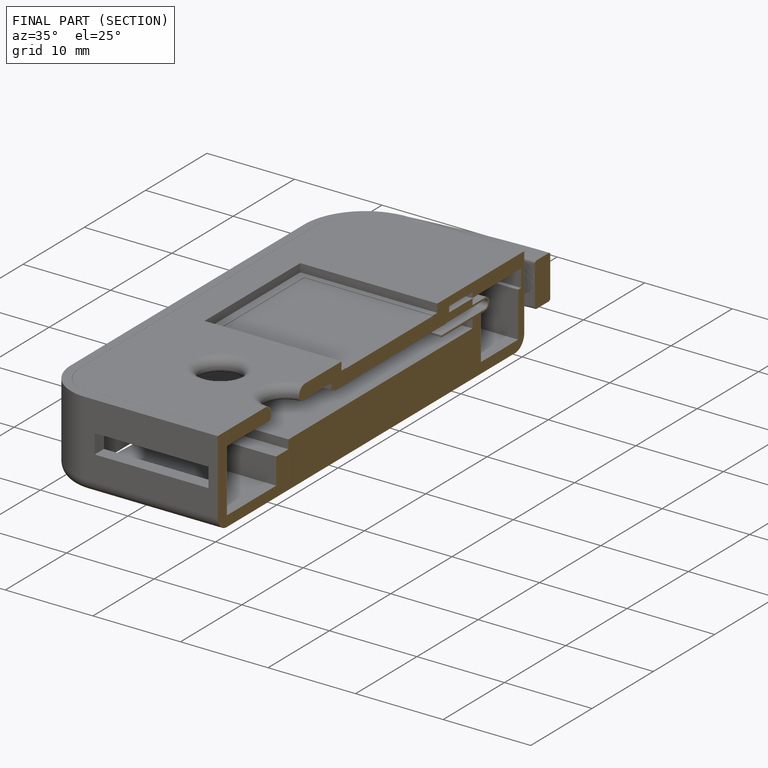
[diagram: finished part — half-section view (interior)]
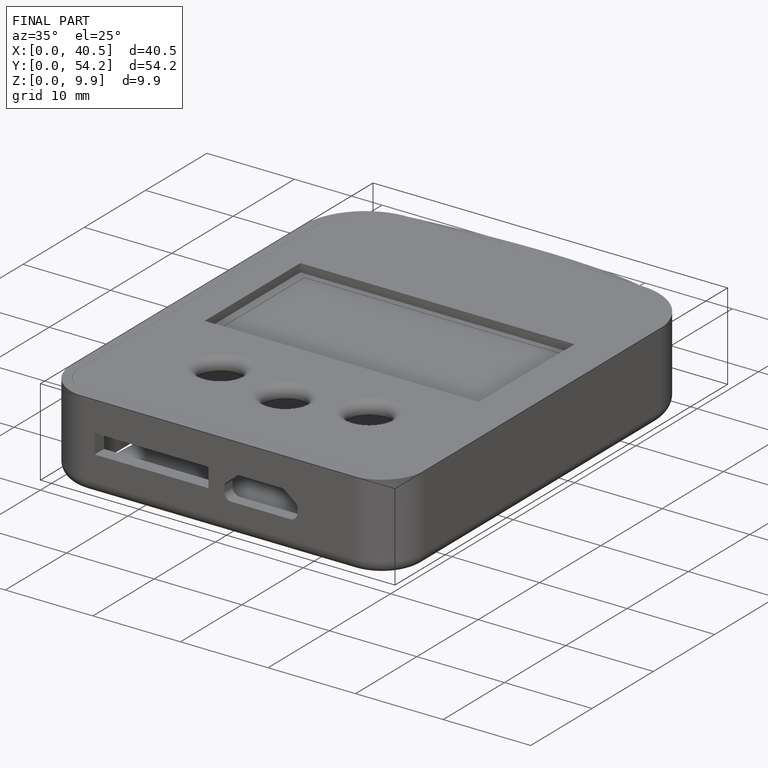
[diagram: finished part — iso view with bounding-box wireframe]
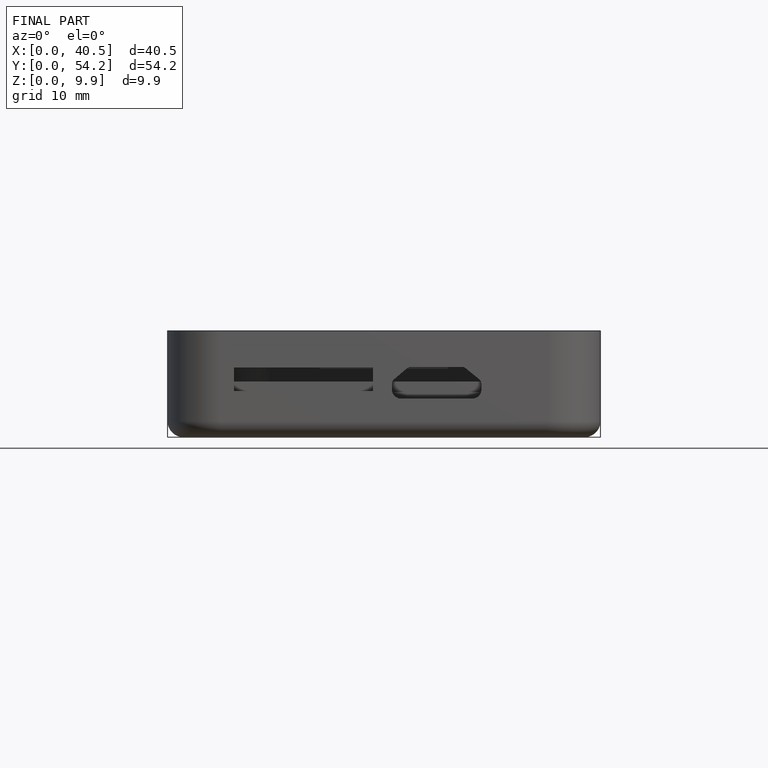
[diagram: finished part — front view with bounding-box wireframe]
